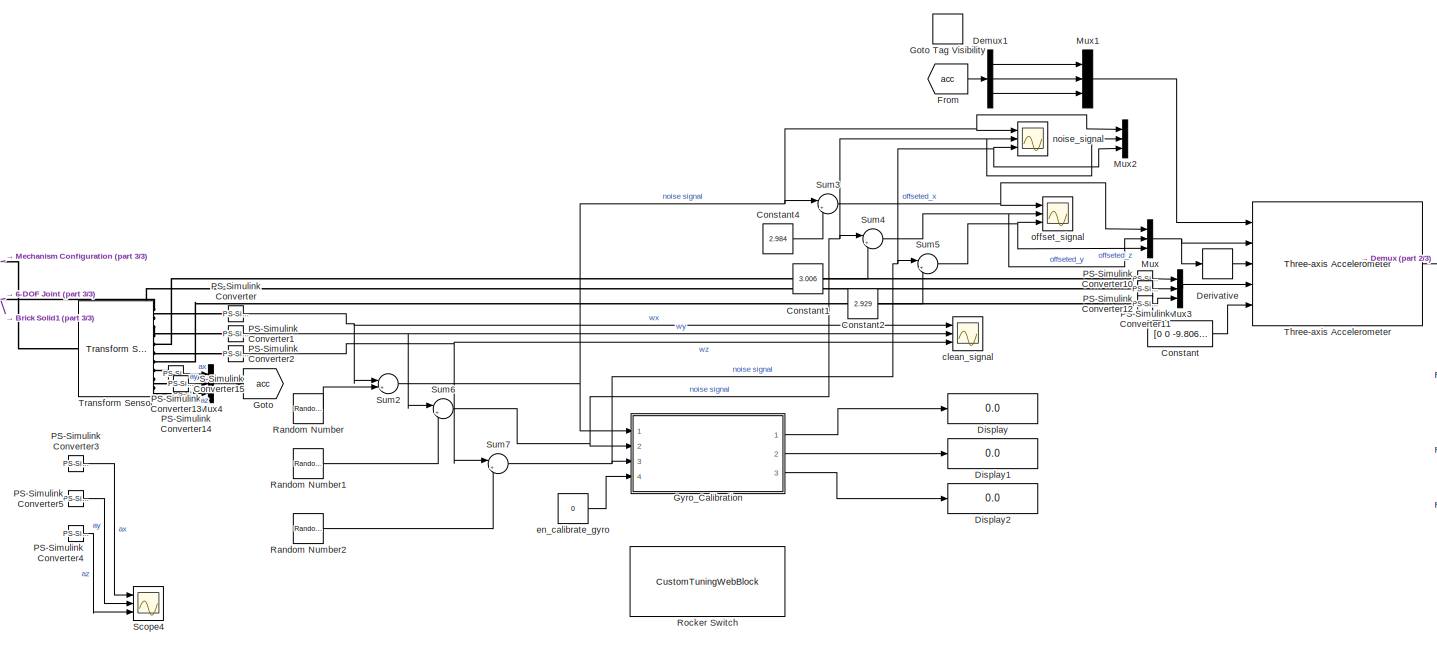
[diagram: root canvas - part 1/3, center side, full height]
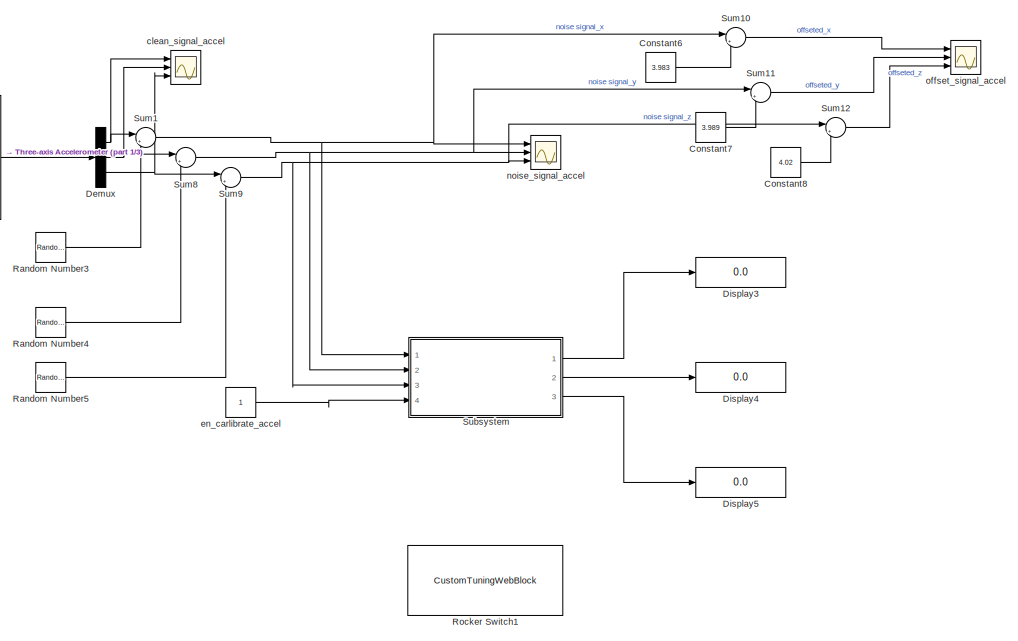
[diagram: root canvas - part 2/3, right side, full height]
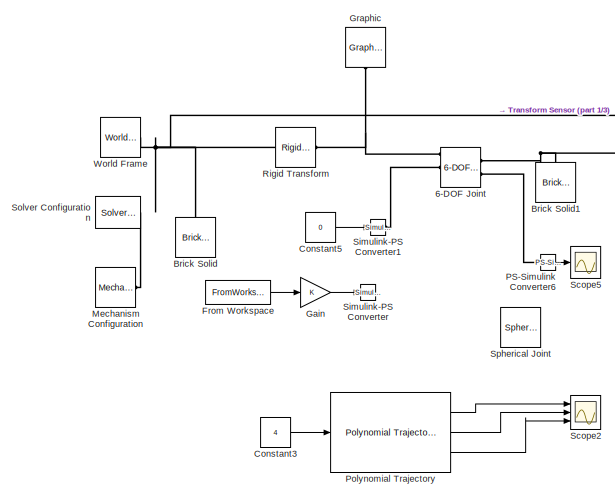
[diagram: root canvas - part 3/3, middle left region]
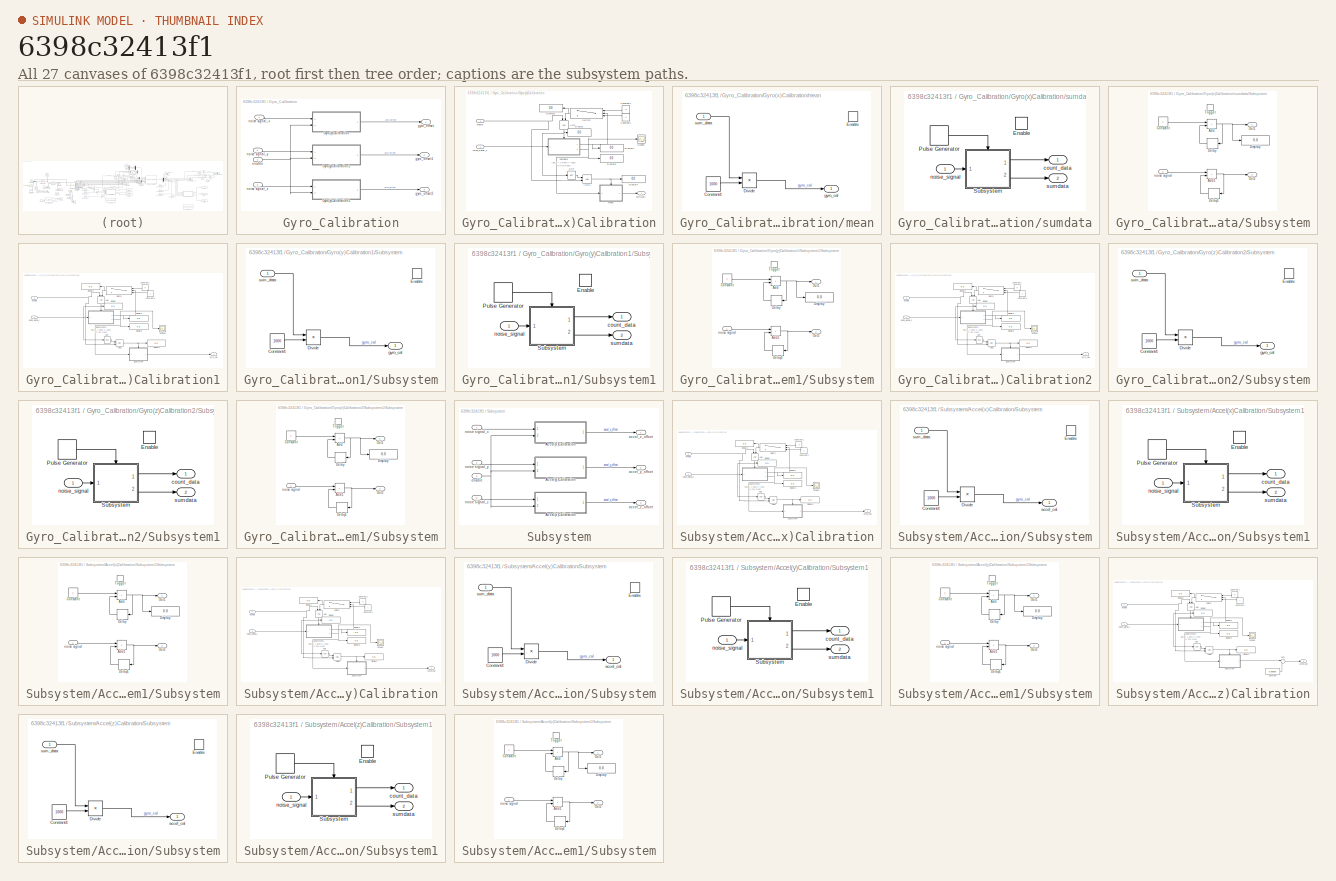
[diagram: thumbnail index - all 27 canvases of the model, root first then tree order]
MODEL slx_6398c32413f1
KIND model
CONFIG AbsTol = auto
CONFIG EnableMultiTasking = off
CONFIG FixedStep = auto
CONFIG MaxStep = auto
CONFIG MinStep = auto
CONFIG RelTol = 1e-3
CONFIG SampleTimeConstraint = Unconstrained
CONFIG SolverName = VariableStepAuto
CONFIG StartTime = 0.0
CONFIG StopTime = 10.0
BLOCK [Reference] 6-DOF Joint  REF=sm_lib/Joints/6-DOF Joint
  Ports = [0, 0, 0, 0, 0, 5, 2]
  SourceBlock = sm_lib/Joints/6-DOF Joint
  SourceProductBaseCode = MS
  SourceType = 6-DOF Joint
BLOCK [Reference] Brick Solid  REF=sm_lib/Body Elements/Brick Solid
  NameLocation = right
  Ports = [0, 0, 0, 0, 0, 0, 1]
  SourceBlock = sm_lib/Body Elements/Brick Solid
  SourceProductBaseCode = MS
  SourceType = Brick Solid
BLOCK [Reference] Brick Solid1  REF=sm_lib/Body Elements/Brick Solid
  NameLocation = right
  Ports = [0, 0, 0, 0, 0, 0, 1]
  SourceBlock = sm_lib/Body Elements/Brick Solid
  SourceProductBaseCode = MS
  SourceType = Brick Solid
BLOCK [Constant] Constant
  Value = [0 0 -9.80665]
BLOCK [Constant] Constant1
  Value = 3.006
BLOCK [Constant] Constant2
  Value = 2.929
BLOCK [Constant] Constant3
  Commented = on
  Value = 4
BLOCK [Constant] Constant4
  Value = 2.984
BLOCK [Constant] Constant5
  Value = 0
BLOCK [Constant] Constant6
  Value = 3.983
BLOCK [Constant] Constant7
  Value = 3.989
BLOCK [Constant] Constant8
  Value = 4.02
BLOCK [Demux] Demux
  Outputs = 3
  Ports = [1, 3]
BLOCK [Demux] Demux1
  Outputs = 3
  Ports = [1, 3]
BLOCK [Derivative] Derivative
BLOCK [Display] Display
  Decimation = 1
  Ports = [1]
BLOCK [Display] Display1
  Decimation = 1
  Ports = [1]
BLOCK [Display] Display2
  Decimation = 1
  Ports = [1]
BLOCK [Display] Display3
  Decimation = 1
  Ports = [1]
BLOCK [Display] Display4
  Decimation = 1
  Ports = [1]
BLOCK [Display] Display5
  Decimation = 1
  Ports = [1]
BLOCK [From] From
  GotoTag = acc
BLOCK [FromWorkspace] From Workspace
  Commented = on
  VariableName = q1sim
BLOCK [Gain] Gain
  Commented = on
BLOCK [Goto] Goto
  GotoTag = acc
BLOCK [GotoTagVisibility] Goto Tag Visibility
  GotoTag = acc
BLOCK [Reference] Graphic  REF=sm_lib/Body Elements/Graphic
  NameLocation = left
  Ports = [0, 0, 0, 0, 0, 0, 1]
  SourceBlock = sm_lib/Body Elements/Graphic
  SourceProductBaseCode = MS
  SourceType = Graphic
BLOCK [SubSystem] Gyro_Calibration
  Ports = [4, 3]
  RequestExecContextInheritance = off
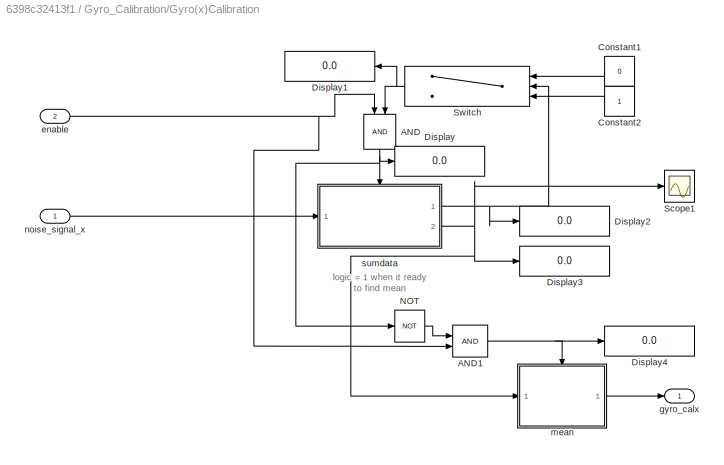
BLOCK [SubSystem] Gyro_Calibration/Gyro(x)Calibration
  Ports = [2, 1]
  RequestExecContextInheritance = off
BLOCK [Logic] Gyro_Calibration/Gyro(x)Calibration/AND
  AllPortsSameDT = off
  IconShape = distinctive
  NameLocation = left
  OutDataTypeStr = boolean
  Ports = [2, 1]
BLOCK [Logic] Gyro_Calibration/Gyro(x)Calibration/AND1
  AllPortsSameDT = off
  IconShape = distinctive
  OutDataTypeStr = boolean
  Ports = [2, 1]
BLOCK [Constant] Gyro_Calibration/Gyro(x)Calibration/Constant1
  NameLocation = top
  Value = 0
BLOCK [Constant] Gyro_Calibration/Gyro(x)Calibration/Constant2
  NameLocation = top
BLOCK [Display] Gyro_Calibration/Gyro(x)Calibration/Display
  Decimation = 1
  Ports = [1]
BLOCK [Display] Gyro_Calibration/Gyro(x)Calibration/Display1
  Decimation = 1
  NameLocation = top
  Ports = [1]
BLOCK [Display] Gyro_Calibration/Gyro(x)Calibration/Display2
  Decimation = 1
  Ports = [1]
BLOCK [Display] Gyro_Calibration/Gyro(x)Calibration/Display3
  Decimation = 1
  Ports = [1]
BLOCK [Display] Gyro_Calibration/Gyro(x)Calibration/Display4
  Decimation = 1
  Ports = [1]
BLOCK [Logic] Gyro_Calibration/Gyro(x)Calibration/NOT
  AllPortsSameDT = off
  IconShape = distinctive
  Operator = NOT
  OutDataTypeStr = boolean
  Ports = [1, 1]
BLOCK [Scope] Gyro_Calibration/Gyro(x)Calibration/Scope1
  Floating = off
  NumInputPorts = 1
  Ports = [1]
  ScopeSpecificationString = Simulink.scopes.TimeScopeBlockCfg('CurrentConfiguration', extmgr.ConfigurationSet(extmgr.Configuration('Core','General UI',true),extmgr.Configuration('Core','Source UI',true),extmgr.Configuration('Sources','WiredSimulink',true,'DataLoggingVariableName','ScopeData1'),extmgr.Configuration('Visuals','Time Domain',true,'SerializedDisplays',{struct('MinYLimReal','-653.32347','MaxYLimReal','5879.9112','...<+1414ch>  <repeated x6 — deduplicated; at blocks: Scope1>
BLOCK [Switch] Gyro_Calibration/Gyro(x)Calibration/Switch
  InputSameDT = off
  NameLocation = top
  SaturateOnIntegerOverflow = off
  Threshold = cal_size
BLOCK [Inport] Gyro_Calibration/Gyro(x)Calibration/enable
  Port = 2
BLOCK [Outport] Gyro_Calibration/Gyro(x)Calibration/gyro_calx
BLOCK [SubSystem] Gyro_Calibration/Gyro(x)Calibration/mean
  Ports = [1, 1, 1]
  RequestExecContextInheritance = off
BLOCK [Constant] Gyro_Calibration/Gyro(x)Calibration/mean/Constant4
  Value = 1000
BLOCK [Product] Gyro_Calibration/Gyro(x)Calibration/mean/Divide
  Inputs = */
  Ports = [2, 1]
BLOCK [EnablePort] Gyro_Calibration/Gyro(x)Calibration/mean/Enable
  Ports = []
BLOCK [Outport] Gyro_Calibration/Gyro(x)Calibration/mean/gyro_cal
BLOCK [Inport] Gyro_Calibration/Gyro(x)Calibration/mean/sum_data
BLOCK [Inport] Gyro_Calibration/Gyro(x)Calibration/noise_signal_x
BLOCK [SubSystem] Gyro_Calibration/Gyro(x)Calibration/sumdata
  Ports = [1, 2, 1]
  RequestExecContextInheritance = off
BLOCK [EnablePort] Gyro_Calibration/Gyro(x)Calibration/sumdata/Enable
  Ports = []
BLOCK [DiscretePulseGenerator] Gyro_Calibration/Gyro(x)Calibration/sumdata/Pulse Generator
  Period = sampleT
  Ports = [0, 1]
  PulseType = Time based
  PulseWidth = 5
BLOCK [SubSystem] Gyro_Calibration/Gyro(x)Calibration/sumdata/Subsystem
  Ports = [1, 2, 0, 1]
  RequestExecContextInheritance = off
BLOCK [Sum] Gyro_Calibration/Gyro(x)Calibration/sumdata/Subsystem/Add
  IconShape = rectangular
  Ports = [2, 1]
BLOCK [Sum] Gyro_Calibration/Gyro(x)Calibration/sumdata/Subsystem/Add1
  IconShape = rectangular
  Ports = [2, 1]
BLOCK [Constant] Gyro_Calibration/Gyro(x)Calibration/sumdata/Subsystem/Constant
BLOCK [Delay] Gyro_Calibration/Gyro(x)Calibration/sumdata/Subsystem/Delay
  DelayLength = 1
  InputPortMap = u0
  NameLocation = top
  Ports = [1, 1]
BLOCK [Delay] Gyro_Calibration/Gyro(x)Calibration/sumdata/Subsystem/Delay1
  DelayLength = 1
  InputPortMap = u0
  NameLocation = top
  Ports = [1, 1]
BLOCK [Display] Gyro_Calibration/Gyro(x)Calibration/sumdata/Subsystem/Display
  Decimation = 1
  Ports = [1]
BLOCK [Outport] Gyro_Calibration/Gyro(x)Calibration/sumdata/Subsystem/Out1
BLOCK [Outport] Gyro_Calibration/Gyro(x)Calibration/sumdata/Subsystem/Out2
  Port = 2
BLOCK [TriggerPort] Gyro_Calibration/Gyro(x)Calibration/sumdata/Subsystem/Trigger
  PortDimensions = 1
  Ports = []
  StatesWhenEnabling = held
  VariantControl = (inherit)
BLOCK [Inport] Gyro_Calibration/Gyro(x)Calibration/sumdata/Subsystem/noise signal
BLOCK [Outport] Gyro_Calibration/Gyro(x)Calibration/sumdata/count_data
BLOCK [Inport] Gyro_Calibration/Gyro(x)Calibration/sumdata/noise_signal
BLOCK [Outport] Gyro_Calibration/Gyro(x)Calibration/sumdata/sumdata
  Port = 2
BLOCK [SubSystem] Gyro_Calibration/Gyro(y)Calibration1
  Ports = [2, 1]
  RequestExecContextInheritance = off
BLOCK [Logic] Gyro_Calibration/Gyro(y)Calibration1/AND
  AllPortsSameDT = off
  IconShape = distinctive
  NameLocation = left
  OutDataTypeStr = boolean
  Ports = [2, 1]
BLOCK [Logic] Gyro_Calibration/Gyro(y)Calibration1/AND1
  AllPortsSameDT = off
  IconShape = distinctive
  OutDataTypeStr = boolean
  Ports = [2, 1]
BLOCK [Constant] Gyro_Calibration/Gyro(y)Calibration1/Constant1
  NameLocation = top
  Value = 0
BLOCK [Constant] Gyro_Calibration/Gyro(y)Calibration1/Constant2
  NameLocation = top
BLOCK [Display] Gyro_Calibration/Gyro(y)Calibration1/Display
  Decimation = 1
  Ports = [1]
BLOCK [Display] Gyro_Calibration/Gyro(y)Calibration1/Display1
  Decimation = 1
  NameLocation = top
  Ports = [1]
BLOCK [Display] Gyro_Calibration/Gyro(y)Calibration1/Display2
  Decimation = 1
  Ports = [1]
BLOCK [Display] Gyro_Calibration/Gyro(y)Calibration1/Display3
  Decimation = 1
  Ports = [1]
BLOCK [Display] Gyro_Calibration/Gyro(y)Calibration1/Display4
  Decimation = 1
  Ports = [1]
BLOCK [Logic] Gyro_Calibration/Gyro(y)Calibration1/NOT
  AllPortsSameDT = off
  IconShape = distinctive
  Operator = NOT
  OutDataTypeStr = boolean
  Ports = [1, 1]
BLOCK [Scope] Gyro_Calibration/Gyro(y)Calibration1/Scope1
  Floating = off
  NumInputPorts = 1
  Ports = [1]
BLOCK [SubSystem] Gyro_Calibration/Gyro(y)Calibration1/Subsystem
  Ports = [1, 1, 1]
  RequestExecContextInheritance = off
BLOCK [Constant] Gyro_Calibration/Gyro(y)Calibration1/Subsystem/Constant4
  Value = 1000
BLOCK [Product] Gyro_Calibration/Gyro(y)Calibration1/Subsystem/Divide
  Inputs = */
  Ports = [2, 1]
BLOCK [EnablePort] Gyro_Calibration/Gyro(y)Calibration1/Subsystem/Enable
  Ports = []
BLOCK [Outport] Gyro_Calibration/Gyro(y)Calibration1/Subsystem/gyro_cal
BLOCK [Inport] Gyro_Calibration/Gyro(y)Calibration1/Subsystem/sum_data
BLOCK [SubSystem] Gyro_Calibration/Gyro(y)Calibration1/Subsystem1
  Ports = [1, 2, 1]
  RequestExecContextInheritance = off
BLOCK [EnablePort] Gyro_Calibration/Gyro(y)Calibration1/Subsystem1/Enable
  Ports = []
BLOCK [DiscretePulseGenerator] Gyro_Calibration/Gyro(y)Calibration1/Subsystem1/Pulse Generator
  Period = sampleT
  Ports = [0, 1]
  PulseType = Time based
  PulseWidth = 5
BLOCK [SubSystem] Gyro_Calibration/Gyro(y)Calibration1/Subsystem1/Subsystem
  Ports = [1, 2, 0, 1]
  RequestExecContextInheritance = off
BLOCK [Sum] Gyro_Calibration/Gyro(y)Calibration1/Subsystem1/Subsystem/Add
  IconShape = rectangular
  Ports = [2, 1]
BLOCK [Sum] Gyro_Calibration/Gyro(y)Calibration1/Subsystem1/Subsystem/Add1
  IconShape = rectangular
  Ports = [2, 1]
BLOCK [Constant] Gyro_Calibration/Gyro(y)Calibration1/Subsystem1/Subsystem/Constant
BLOCK [Delay] Gyro_Calibration/Gyro(y)Calibration1/Subsystem1/Subsystem/Delay
  DelayLength = 1
  InputPortMap = u0
  NameLocation = top
  Ports = [1, 1]
BLOCK [Delay] Gyro_Calibration/Gyro(y)Calibration1/Subsystem1/Subsystem/Delay1
  DelayLength = 1
  InputPortMap = u0
  NameLocation = top
  Ports = [1, 1]
BLOCK [Display] Gyro_Calibration/Gyro(y)Calibration1/Subsystem1/Subsystem/Display
  Decimation = 1
  Ports = [1]
BLOCK [Outport] Gyro_Calibration/Gyro(y)Calibration1/Subsystem1/Subsystem/Out1
BLOCK [Outport] Gyro_Calibration/Gyro(y)Calibration1/Subsystem1/Subsystem/Out2
  Port = 2
BLOCK [TriggerPort] Gyro_Calibration/Gyro(y)Calibration1/Subsystem1/Subsystem/Trigger
  PortDimensions = 1
  Ports = []
  StatesWhenEnabling = held
  VariantControl = (inherit)
BLOCK [Inport] Gyro_Calibration/Gyro(y)Calibration1/Subsystem1/Subsystem/noise signal
BLOCK [Outport] Gyro_Calibration/Gyro(y)Calibration1/Subsystem1/count_data
BLOCK [Inport] Gyro_Calibration/Gyro(y)Calibration1/Subsystem1/noise_signal
BLOCK [Outport] Gyro_Calibration/Gyro(y)Calibration1/Subsystem1/sumdata
  Port = 2
BLOCK [Switch] Gyro_Calibration/Gyro(y)Calibration1/Switch
  InputSameDT = off
  NameLocation = top
  SaturateOnIntegerOverflow = off
  Threshold = cal_size
BLOCK [Inport] Gyro_Calibration/Gyro(y)Calibration1/enable
  Port = 2
BLOCK [Outport] Gyro_Calibration/Gyro(y)Calibration1/gyro_caly
BLOCK [Inport] Gyro_Calibration/Gyro(y)Calibration1/noise_signal_y
BLOCK [SubSystem] Gyro_Calibration/Gyro(z)Calibration2
  Ports = [2, 1]
  RequestExecContextInheritance = off
BLOCK [Logic] Gyro_Calibration/Gyro(z)Calibration2/AND
  AllPortsSameDT = off
  IconShape = distinctive
  NameLocation = left
  OutDataTypeStr = boolean
  Ports = [2, 1]
BLOCK [Logic] Gyro_Calibration/Gyro(z)Calibration2/AND1
  AllPortsSameDT = off
  IconShape = distinctive
  OutDataTypeStr = boolean
  Ports = [2, 1]
BLOCK [Constant] Gyro_Calibration/Gyro(z)Calibration2/Constant1
  NameLocation = top
  Value = 0
BLOCK [Constant] Gyro_Calibration/Gyro(z)Calibration2/Constant2
  NameLocation = top
BLOCK [Display] Gyro_Calibration/Gyro(z)Calibration2/Display
  Decimation = 1
  Ports = [1]
BLOCK [Display] Gyro_Calibration/Gyro(z)Calibration2/Display1
  Decimation = 1
  NameLocation = top
  Ports = [1]
BLOCK [Display] Gyro_Calibration/Gyro(z)Calibration2/Display2
  Decimation = 1
  Ports = [1]
BLOCK [Display] Gyro_Calibration/Gyro(z)Calibration2/Display3
  Decimation = 1
  Ports = [1]
BLOCK [Display] Gyro_Calibration/Gyro(z)Calibration2/Display4
  Decimation = 1
  Ports = [1]
BLOCK [Logic] Gyro_Calibration/Gyro(z)Calibration2/NOT
  AllPortsSameDT = off
  IconShape = distinctive
  Operator = NOT
  OutDataTypeStr = boolean
  Ports = [1, 1]
BLOCK [Scope] Gyro_Calibration/Gyro(z)Calibration2/Scope1
  Floating = off
  NumInputPorts = 1
  Ports = [1]
BLOCK [SubSystem] Gyro_Calibration/Gyro(z)Calibration2/Subsystem
  Ports = [1, 1, 1]
  RequestExecContextInheritance = off
BLOCK [Constant] Gyro_Calibration/Gyro(z)Calibration2/Subsystem/Constant4
  Value = 1000
BLOCK [Product] Gyro_Calibration/Gyro(z)Calibration2/Subsystem/Divide
  Inputs = */
  Ports = [2, 1]
BLOCK [EnablePort] Gyro_Calibration/Gyro(z)Calibration2/Subsystem/Enable
  Ports = []
BLOCK [Outport] Gyro_Calibration/Gyro(z)Calibration2/Subsystem/gyro_cal
BLOCK [Inport] Gyro_Calibration/Gyro(z)Calibration2/Subsystem/sum_data
BLOCK [SubSystem] Gyro_Calibration/Gyro(z)Calibration2/Subsystem1
  Ports = [1, 2, 1]
  RequestExecContextInheritance = off
BLOCK [EnablePort] Gyro_Calibration/Gyro(z)Calibration2/Subsystem1/Enable
  Ports = []
BLOCK [DiscretePulseGenerator] Gyro_Calibration/Gyro(z)Calibration2/Subsystem1/Pulse Generator
  Period = sampleT
  Ports = [0, 1]
  PulseType = Time based
  PulseWidth = 5
BLOCK [SubSystem] Gyro_Calibration/Gyro(z)Calibration2/Subsystem1/Subsystem
  Ports = [1, 2, 0, 1]
  RequestExecContextInheritance = off
BLOCK [Sum] Gyro_Calibration/Gyro(z)Calibration2/Subsystem1/Subsystem/Add
  IconShape = rectangular
  Ports = [2, 1]
BLOCK [Sum] Gyro_Calibration/Gyro(z)Calibration2/Subsystem1/Subsystem/Add1
  IconShape = rectangular
  Ports = [2, 1]
BLOCK [Constant] Gyro_Calibration/Gyro(z)Calibration2/Subsystem1/Subsystem/Constant
BLOCK [Delay] Gyro_Calibration/Gyro(z)Calibration2/Subsystem1/Subsystem/Delay
  DelayLength = 1
  InputPortMap = u0
  NameLocation = top
  Ports = [1, 1]
BLOCK [Delay] Gyro_Calibration/Gyro(z)Calibration2/Subsystem1/Subsystem/Delay1
  DelayLength = 1
  InputPortMap = u0
  NameLocation = top
  Ports = [1, 1]
BLOCK [Display] Gyro_Calibration/Gyro(z)Calibration2/Subsystem1/Subsystem/Display
  Decimation = 1
  Ports = [1]
BLOCK [Outport] Gyro_Calibration/Gyro(z)Calibration2/Subsystem1/Subsystem/Out1
BLOCK [Outport] Gyro_Calibration/Gyro(z)Calibration2/Subsystem1/Subsystem/Out2
  Port = 2
BLOCK [TriggerPort] Gyro_Calibration/Gyro(z)Calibration2/Subsystem1/Subsystem/Trigger
  PortDimensions = 1
  Ports = []
  StatesWhenEnabling = held
  VariantControl = (inherit)
BLOCK [Inport] Gyro_Calibration/Gyro(z)Calibration2/Subsystem1/Subsystem/noise signal
BLOCK [Outport] Gyro_Calibration/Gyro(z)Calibration2/Subsystem1/count_data
BLOCK [Inport] Gyro_Calibration/Gyro(z)Calibration2/Subsystem1/noise_signal
BLOCK [Outport] Gyro_Calibration/Gyro(z)Calibration2/Subsystem1/sumdata
  Port = 2
BLOCK [Switch] Gyro_Calibration/Gyro(z)Calibration2/Switch
  InputSameDT = off
  NameLocation = top
  SaturateOnIntegerOverflow = off
  Threshold = cal_size
BLOCK [Inport] Gyro_Calibration/Gyro(z)Calibration2/enable
  Port = 2
BLOCK [Outport] Gyro_Calibration/Gyro(z)Calibration2/gyro_calz
BLOCK [Inport] Gyro_Calibration/Gyro(z)Calibration2/noise_signal_z
BLOCK [Inport] Gyro_Calibration/enable
  Port = 4
BLOCK [Outport] Gyro_Calibration/gyro_offset
BLOCK [Outport] Gyro_Calibration/gyro_offset1
  Port = 2
BLOCK [Outport] Gyro_Calibration/gyro_offset2
  Port = 3
BLOCK [Inport] Gyro_Calibration/noise signal_x
BLOCK [Inport] Gyro_Calibration/noise signal_y
  Port = 2
BLOCK [Inport] Gyro_Calibration/noise signal_z
  Port = 3
BLOCK [Reference] Mechanism Configuration  REF=sm_lib/Utilities/Mechanism
Configuration
  Ports = [0, 0, 0, 0, 0, 0, 1]
  SourceBlock = sm_lib/Utilities/Mechanism\nConfiguration
  SourceProductBaseCode = MS
  SourceType = Mechanism\nConfiguration
BLOCK [Mux] Mux
  DisplayOption = bar
  Inputs = 3
  Ports = [3, 1]
BLOCK [Mux] Mux1
  DisplayOption = bar
  Inputs = 3
  Ports = [3, 1]
BLOCK [Mux] Mux2
  DisplayOption = bar
  Inputs = 3
  Ports = [3, 1]
BLOCK [Mux] Mux3
  DisplayOption = bar
  Inputs = 3
  Ports = [3, 1]
BLOCK [Mux] Mux4
  DisplayOption = bar
  Inputs = 3
  Ports = [3, 1]
BLOCK [Reference] PS-Simulink Converter  REF=nesl_utility/PS-Simulink
Converter
  Ports = [0, 1, 0, 0, 0, 1]
  SourceBlock = nesl_utility/PS-Simulink\nConverter
  SourceProductBaseCode = PW,SS
  SourceType = PS-Simulink\nConverter
BLOCK [Reference] PS-Simulink Converter1  REF=nesl_utility/PS-Simulink
Converter
  Ports = [0, 1, 0, 0, 0, 1]
  SourceBlock = nesl_utility/PS-Simulink\nConverter
  SourceProductBaseCode = PW,SS
  SourceType = PS-Simulink\nConverter
BLOCK [Reference] PS-Simulink Converter10  REF=nesl_utility/PS-Simulink
Converter
  Ports = [0, 1, 0, 0, 0, 1]
  SourceBlock = nesl_utility/PS-Simulink\nConverter
  SourceProductBaseCode = PW,SS
  SourceType = PS-Simulink\nConverter
BLOCK [Reference] PS-Simulink Converter11  REF=nesl_utility/PS-Simulink
Converter
  Ports = [0, 1, 0, 0, 0, 1]
  SourceBlock = nesl_utility/PS-Simulink\nConverter
  SourceProductBaseCode = PW,SS
  SourceType = PS-Simulink\nConverter
BLOCK [Reference] PS-Simulink Converter12  REF=nesl_utility/PS-Simulink
Converter
  Ports = [0, 1, 0, 0, 0, 1]
  SourceBlock = nesl_utility/PS-Simulink\nConverter
  SourceProductBaseCode = PW,SS
  SourceType = PS-Simulink\nConverter
BLOCK [Reference] PS-Simulink Converter13  REF=nesl_utility/PS-Simulink
Converter
  Ports = [0, 1, 0, 0, 0, 1]
  SourceBlock = nesl_utility/PS-Simulink\nConverter
  SourceProductBaseCode = PW,SS
  SourceType = PS-Simulink\nConverter
BLOCK [Reference] PS-Simulink Converter14  REF=nesl_utility/PS-Simulink
Converter
  Ports = [0, 1, 0, 0, 0, 1]
  SourceBlock = nesl_utility/PS-Simulink\nConverter
  SourceProductBaseCode = PW,SS
  SourceType = PS-Simulink\nConverter
BLOCK [Reference] PS-Simulink Converter15  REF=nesl_utility/PS-Simulink
Converter
  Ports = [0, 1, 0, 0, 0, 1]
  SourceBlock = nesl_utility/PS-Simulink\nConverter
  SourceProductBaseCode = PW,SS
  SourceType = PS-Simulink\nConverter
BLOCK [Reference] PS-Simulink Converter2  REF=nesl_utility/PS-Simulink
Converter
  Ports = [0, 1, 0, 0, 0, 1]
  SourceBlock = nesl_utility/PS-Simulink\nConverter
  SourceProductBaseCode = PW,SS
  SourceType = PS-Simulink\nConverter
BLOCK [Reference] PS-Simulink Converter3  REF=nesl_utility/PS-Simulink
Converter
  Ports = [0, 1, 0, 0, 0, 1]
  SourceBlock = nesl_utility/PS-Simulink\nConverter
  SourceProductBaseCode = PW,SS
  SourceType = PS-Simulink\nConverter
BLOCK [Reference] PS-Simulink Converter4  REF=nesl_utility/PS-Simulink
Converter
  Ports = [0, 1, 0, 0, 0, 1]
  SourceBlock = nesl_utility/PS-Simulink\nConverter
  SourceProductBaseCode = PW,SS
  SourceType = PS-Simulink\nConverter
BLOCK [Reference] PS-Simulink Converter5  REF=nesl_utility/PS-Simulink
Converter
  Ports = [0, 1, 0, 0, 0, 1]
  SourceBlock = nesl_utility/PS-Simulink\nConverter
  SourceProductBaseCode = PW,SS
  SourceType = PS-Simulink\nConverter
BLOCK [Reference] PS-Simulink Converter6  REF=nesl_utility/PS-Simulink
Converter
  Ports = [0, 1, 0, 0, 0, 1]
  SourceBlock = nesl_utility/PS-Simulink\nConverter
  SourceProductBaseCode = PW,SS
  SourceType = PS-Simulink\nConverter
BLOCK [Reference] Polynomial Trajectory  REF=robotcorelib/Polynomial Trajectory
  Commented = on
  Ports = [1, 3]
  SourceBlock = robotcorelib/Polynomial Trajectory
  SourceProductBaseCode = NV,RO,RR,UV
  SourceType = robotics.slcore.internal.block.PolyTrajSys
BLOCK [RandomNumber] Random Number
  Mean = 3
  SampleTime = 0.01
  Variance = 2
BLOCK [RandomNumber] Random Number1
  Mean = 3
  SampleTime = 0.01
  Seed = 1
  Variance = 2
BLOCK [RandomNumber] Random Number2
  Mean = 3
  SampleTime = 0.01
  Seed = 2
  Variance = 2
BLOCK [RandomNumber] Random Number3
  Mean = 4
  SampleTime = 0.01
BLOCK [RandomNumber] Random Number4
  Mean = 4
  SampleTime = 0.01
BLOCK [RandomNumber] Random Number5
  Mean = 4
  SampleTime = 0.01
BLOCK [Reference] Rigid Transform  REF=sm_lib/Frames and
Transforms/Rigid
Transform
  Ports = [0, 0, 0, 0, 0, 1, 1]
  SourceBlock = sm_lib/Frames and\nTransforms/Rigid\nTransform
  SourceProductBaseCode = MS
  SourceType = Rigid\nTransform
BLOCK [CustomTuningWebBlock] Rocker Switch
  Configuration = {"components":[{"name":"CustomSwitchStateComponent","settings":{"position":[0,0,1,1],"states":[{"HitRegion":{"position":[0,0,0.5,1]},"Image":{"position":[0.13,0,1,0.75],"size":[1,0.75],"src":"data:image\/svg+xml;base64,PHN2ZyB4bWxucz0iaHR0cDovL3d3dy53My5vcmcvMjAwMC9zdmciIHhtbG5zOnhsaW5rPSJodHRwOi8vd3d3LnczLm9yZy8xOTk5L3hsaW5rIiB2aWV3Qm94PSIwIDAgNzUgMjQuOCI+PGRlZnM+PHN0eWxlPi5jbHMtMXtmaWxsOnVybCgjc...<+8939ch>
  LabelPosition = Hide
  ShowInitialText = on
BLOCK [CustomTuningWebBlock] Rocker Switch1
  Configuration = {"components":[{"name":"CustomSwitchStateComponent","settings":{"position":[0,0,1,1],"states":[{"HitRegion":{"position":[0,0,0.5,1]},"Image":{"position":[0.13,0,1,0.75],"size":[1,0.75],"src":"data:image\/svg+xml;base64,PHN2ZyB4bWxucz0iaHR0cDovL3d3dy53My5vcmcvMjAwMC9zdmciIHhtbG5zOnhsaW5rPSJodHRwOi8vd3d3LnczLm9yZy8xOTk5L3hsaW5rIiB2aWV3Qm94PSIwIDAgNzUgMjQuOCI+PGRlZnM+PHN0eWxlPi5jbHMtMXtmaWxsOnVybCgjc...<+8939ch>
  LabelPosition = Hide
  ShowInitialText = on
BLOCK [Scope] Scope2
  Commented = on
  Floating = off
  NumInputPorts = 3
  Ports = [3]
  ScopeSpecificationString = Simulink.scopes.TimeScopeBlockCfg('CurrentConfiguration', extmgr.ConfigurationSet(extmgr.Configuration('Core','General UI',true),extmgr.Configuration('Core','Source UI',true),extmgr.Configuration('Sources','WiredSimulink',true,'DataLoggingVariableName','ScopeData2'),extmgr.Configuration('Visuals','Time Domain',true,'SerializedDisplays',{struct('MinYLimReal','-0.625','MaxYLimReal','5.625','YLabelRe...<+1676ch>
BLOCK [Scope] Scope4
  Floating = off
  NumInputPorts = 3
  Ports = [3]
  ScopeSpecificationString = Simulink.scopes.TimeScopeBlockCfg('CurrentConfiguration', extmgr.ConfigurationSet(extmgr.Configuration('Core','General UI',true),extmgr.Configuration('Core','Source UI',true),extmgr.Configuration('Sources','WiredSimulink',true,'DataLoggingVariableName','ScopeData4'),extmgr.Configuration('Visuals','Time Domain',true,'SerializedDisplays',{struct('MinYLimReal','-1.00000','MaxYLimReal','1.00000','YLab...<+1398ch>
BLOCK [Scope] Scope5
  Floating = off
  NumInputPorts = 1
  Ports = [1]
  ScopeSpecificationString = Simulink.scopes.TimeScopeBlockCfg('CurrentConfiguration', extmgr.ConfigurationSet(extmgr.Configuration('Core','General UI',true),extmgr.Configuration('Core','Source UI',true),extmgr.Configuration('Sources','WiredSimulink',true,'DataLoggingVariableName','ScopeData5'),extmgr.Configuration('Visuals','Time Domain',true,'SerializedDisplays',{struct('MinYLimReal','-1.00000','MaxYLimReal','1.00000','YLab...<+1408ch>
BLOCK [Reference] Simulink-PS Converter  REF=nesl_utility/Simulink-PS
Converter
  Commented = on
  Ports = [1, 0, 0, 0, 0, 0, 1]
  SourceBlock = nesl_utility/Simulink-PS\nConverter
  SourceProductBaseCode = PW,SS
  SourceType = Simulink-PS\nConverter
BLOCK [Reference] Simulink-PS Converter1  REF=nesl_utility/Simulink-PS
Converter
  Ports = [1, 0, 0, 0, 0, 0, 1]
  SourceBlock = nesl_utility/Simulink-PS\nConverter
  SourceProductBaseCode = PW,SS
  SourceType = Simulink-PS\nConverter
BLOCK [Reference] Solver Configuration  REF=nesl_utility/Solver
Configuration
  Ports = [0, 0, 0, 0, 0, 0, 1]
  SourceBlock = nesl_utility/Solver\nConfiguration
  SourceProductBaseCode = PW,SS
  SourceType = Solver\nConfiguration
BLOCK [Reference] Spherical Joint  REF=sm_lib/Joints/Spherical
Joint
  Commented = on
  Ports = [0, 0, 0, 0, 0, 4, 2]
  SourceBlock = sm_lib/Joints/Spherical\nJoint
  SourceProductBaseCode = MS
  SourceType = Spherical\nJoint
BLOCK [SubSystem] Subsystem
  Ports = [4, 3]
  RequestExecContextInheritance = off
BLOCK [SubSystem] Subsystem/Accel(x)Calibration
  Ports = [2, 1]
  RequestExecContextInheritance = off
BLOCK [Logic] Subsystem/Accel(x)Calibration/AND
  AllPortsSameDT = off
  IconShape = distinctive
  NameLocation = left
  OutDataTypeStr = boolean
  Ports = [2, 1]
BLOCK [Logic] Subsystem/Accel(x)Calibration/AND1
  AllPortsSameDT = off
  IconShape = distinctive
  OutDataTypeStr = boolean
  Ports = [2, 1]
BLOCK [Constant] Subsystem/Accel(x)Calibration/Constant1
  NameLocation = top
  Value = 0
BLOCK [Constant] Subsystem/Accel(x)Calibration/Constant2
  NameLocation = top
BLOCK [Display] Subsystem/Accel(x)Calibration/Display
  Decimation = 1
  Ports = [1]
BLOCK [Display] Subsystem/Accel(x)Calibration/Display1
  Decimation = 1
  NameLocation = top
  Ports = [1]
BLOCK [Display] Subsystem/Accel(x)Calibration/Display2
  Decimation = 1
  Ports = [1]
BLOCK [Display] Subsystem/Accel(x)Calibration/Display3
  Decimation = 1
  Ports = [1]
BLOCK [Display] Subsystem/Accel(x)Calibration/Display4
  Decimation = 1
  Ports = [1]
BLOCK [Logic] Subsystem/Accel(x)Calibration/NOT
  AllPortsSameDT = off
  IconShape = distinctive
  Operator = NOT
  OutDataTypeStr = boolean
  Ports = [1, 1]
BLOCK [Scope] Subsystem/Accel(x)Calibration/Scope1
  Floating = off
  NumInputPorts = 1
  Ports = [1]
BLOCK [SubSystem] Subsystem/Accel(x)Calibration/Subsystem
  Ports = [1, 1, 1]
  RequestExecContextInheritance = off
BLOCK [Constant] Subsystem/Accel(x)Calibration/Subsystem/Constant4
  Value = 1000
BLOCK [Product] Subsystem/Accel(x)Calibration/Subsystem/Divide
  Inputs = */
  Ports = [2, 1]
BLOCK [EnablePort] Subsystem/Accel(x)Calibration/Subsystem/Enable
  Ports = []
BLOCK [Outport] Subsystem/Accel(x)Calibration/Subsystem/accel_cal
BLOCK [Inport] Subsystem/Accel(x)Calibration/Subsystem/sum_data
BLOCK [SubSystem] Subsystem/Accel(x)Calibration/Subsystem1
  Ports = [1, 2, 1]
  RequestExecContextInheritance = off
BLOCK [EnablePort] Subsystem/Accel(x)Calibration/Subsystem1/Enable
  Ports = []
BLOCK [DiscretePulseGenerator] Subsystem/Accel(x)Calibration/Subsystem1/Pulse Generator
  Period = sampleT
  Ports = [0, 1]
  PulseType = Time based
  PulseWidth = 5
BLOCK [SubSystem] Subsystem/Accel(x)Calibration/Subsystem1/Subsystem
  Ports = [1, 2, 0, 1]
  RequestExecContextInheritance = off
BLOCK [Sum] Subsystem/Accel(x)Calibration/Subsystem1/Subsystem/Add
  IconShape = rectangular
  Ports = [2, 1]
BLOCK [Sum] Subsystem/Accel(x)Calibration/Subsystem1/Subsystem/Add1
  IconShape = rectangular
  Ports = [2, 1]
BLOCK [Constant] Subsystem/Accel(x)Calibration/Subsystem1/Subsystem/Constant
BLOCK [Delay] Subsystem/Accel(x)Calibration/Subsystem1/Subsystem/Delay
  DelayLength = 1
  InputPortMap = u0
  NameLocation = top
  Ports = [1, 1]
BLOCK [Delay] Subsystem/Accel(x)Calibration/Subsystem1/Subsystem/Delay1
  DelayLength = 1
  InputPortMap = u0
  NameLocation = top
  Ports = [1, 1]
BLOCK [Display] Subsystem/Accel(x)Calibration/Subsystem1/Subsystem/Display
  Decimation = 1
  Ports = [1]
BLOCK [Outport] Subsystem/Accel(x)Calibration/Subsystem1/Subsystem/Out1
BLOCK [Outport] Subsystem/Accel(x)Calibration/Subsystem1/Subsystem/Out2
  Port = 2
BLOCK [TriggerPort] Subsystem/Accel(x)Calibration/Subsystem1/Subsystem/Trigger
  PortDimensions = 1
  Ports = []
  StatesWhenEnabling = held
  VariantControl = (inherit)
BLOCK [Inport] Subsystem/Accel(x)Calibration/Subsystem1/Subsystem/noise signal
BLOCK [Outport] Subsystem/Accel(x)Calibration/Subsystem1/count_data
BLOCK [Inport] Subsystem/Accel(x)Calibration/Subsystem1/noise_signal
BLOCK [Outport] Subsystem/Accel(x)Calibration/Subsystem1/sumdata
  Port = 2
BLOCK [Switch] Subsystem/Accel(x)Calibration/Switch
  InputSameDT = off
  NameLocation = top
  SaturateOnIntegerOverflow = off
  Threshold = cal_size
BLOCK [Outport] Subsystem/Accel(x)Calibration/accel_calx
BLOCK [Inport] Subsystem/Accel(x)Calibration/enable
  Port = 2
BLOCK [Inport] Subsystem/Accel(x)Calibration/noise_signal_x
BLOCK [SubSystem] Subsystem/Accel(y)Calibration
  Ports = [2, 1]
  RequestExecContextInheritance = off
BLOCK [Logic] Subsystem/Accel(y)Calibration/AND
  AllPortsSameDT = off
  IconShape = distinctive
  NameLocation = left
  OutDataTypeStr = boolean
  Ports = [2, 1]
BLOCK [Logic] Subsystem/Accel(y)Calibration/AND1
  AllPortsSameDT = off
  IconShape = distinctive
  OutDataTypeStr = boolean
  Ports = [2, 1]
BLOCK [Constant] Subsystem/Accel(y)Calibration/Constant1
  NameLocation = top
  Value = 0
BLOCK [Constant] Subsystem/Accel(y)Calibration/Constant2
  NameLocation = top
BLOCK [Display] Subsystem/Accel(y)Calibration/Display
  Decimation = 1
  Ports = [1]
BLOCK [Display] Subsystem/Accel(y)Calibration/Display1
  Decimation = 1
  NameLocation = top
  Ports = [1]
BLOCK [Display] Subsystem/Accel(y)Calibration/Display2
  Decimation = 1
  Ports = [1]
BLOCK [Display] Subsystem/Accel(y)Calibration/Display3
  Decimation = 1
  Ports = [1]
BLOCK [Display] Subsystem/Accel(y)Calibration/Display4
  Decimation = 1
  Ports = [1]
BLOCK [Logic] Subsystem/Accel(y)Calibration/NOT
  AllPortsSameDT = off
  IconShape = distinctive
  Operator = NOT
  OutDataTypeStr = boolean
  Ports = [1, 1]
BLOCK [Scope] Subsystem/Accel(y)Calibration/Scope1
  Floating = off
  NumInputPorts = 1
  Ports = [1]
BLOCK [SubSystem] Subsystem/Accel(y)Calibration/Subsystem
  Ports = [1, 1, 1]
  RequestExecContextInheritance = off
BLOCK [Constant] Subsystem/Accel(y)Calibration/Subsystem/Constant4
  Value = 1000
BLOCK [Product] Subsystem/Accel(y)Calibration/Subsystem/Divide
  Inputs = */
  Ports = [2, 1]
BLOCK [EnablePort] Subsystem/Accel(y)Calibration/Subsystem/Enable
  Ports = []
BLOCK [Outport] Subsystem/Accel(y)Calibration/Subsystem/accel_cal
BLOCK [Inport] Subsystem/Accel(y)Calibration/Subsystem/sum_data
BLOCK [SubSystem] Subsystem/Accel(y)Calibration/Subsystem1
  Ports = [1, 2, 1]
  RequestExecContextInheritance = off
BLOCK [EnablePort] Subsystem/Accel(y)Calibration/Subsystem1/Enable
  Ports = []
BLOCK [DiscretePulseGenerator] Subsystem/Accel(y)Calibration/Subsystem1/Pulse Generator
  Period = sampleT
  Ports = [0, 1]
  PulseType = Time based
  PulseWidth = 5
BLOCK [SubSystem] Subsystem/Accel(y)Calibration/Subsystem1/Subsystem
  Ports = [1, 2, 0, 1]
  RequestExecContextInheritance = off
BLOCK [Sum] Subsystem/Accel(y)Calibration/Subsystem1/Subsystem/Add
  IconShape = rectangular
  Ports = [2, 1]
BLOCK [Sum] Subsystem/Accel(y)Calibration/Subsystem1/Subsystem/Add1
  IconShape = rectangular
  Ports = [2, 1]
BLOCK [Constant] Subsystem/Accel(y)Calibration/Subsystem1/Subsystem/Constant
BLOCK [Delay] Subsystem/Accel(y)Calibration/Subsystem1/Subsystem/Delay
  DelayLength = 1
  InputPortMap = u0
  NameLocation = top
  Ports = [1, 1]
BLOCK [Delay] Subsystem/Accel(y)Calibration/Subsystem1/Subsystem/Delay1
  DelayLength = 1
  InputPortMap = u0
  NameLocation = top
  Ports = [1, 1]
BLOCK [Display] Subsystem/Accel(y)Calibration/Subsystem1/Subsystem/Display
  Decimation = 1
  Ports = [1]
BLOCK [Outport] Subsystem/Accel(y)Calibration/Subsystem1/Subsystem/Out1
BLOCK [Outport] Subsystem/Accel(y)Calibration/Subsystem1/Subsystem/Out2
  Port = 2
BLOCK [TriggerPort] Subsystem/Accel(y)Calibration/Subsystem1/Subsystem/Trigger
  PortDimensions = 1
  Ports = []
  StatesWhenEnabling = held
  VariantControl = (inherit)
BLOCK [Inport] Subsystem/Accel(y)Calibration/Subsystem1/Subsystem/noise signal
BLOCK [Outport] Subsystem/Accel(y)Calibration/Subsystem1/count_data
BLOCK [Inport] Subsystem/Accel(y)Calibration/Subsystem1/noise_signal
BLOCK [Outport] Subsystem/Accel(y)Calibration/Subsystem1/sumdata
  Port = 2
BLOCK [Switch] Subsystem/Accel(y)Calibration/Switch
  InputSameDT = off
  NameLocation = top
  SaturateOnIntegerOverflow = off
  Threshold = cal_size
BLOCK [Outport] Subsystem/Accel(y)Calibration/accel_caly
BLOCK [Inport] Subsystem/Accel(y)Calibration/enable
  Port = 2
BLOCK [Inport] Subsystem/Accel(y)Calibration/noise_signal_y
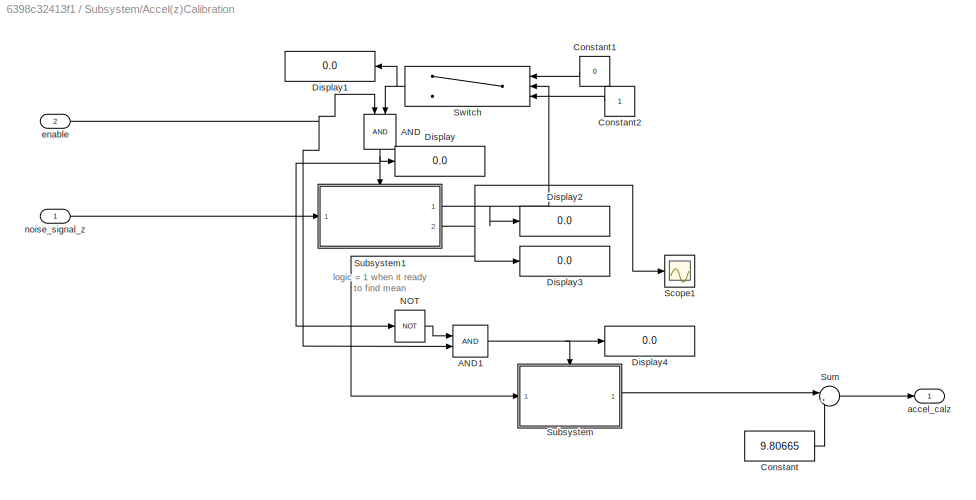
BLOCK [SubSystem] Subsystem/Accel(z)Calibration
  Ports = [2, 1]
  RequestExecContextInheritance = off
BLOCK [Logic] Subsystem/Accel(z)Calibration/AND
  AllPortsSameDT = off
  IconShape = distinctive
  NameLocation = left
  OutDataTypeStr = boolean
  Ports = [2, 1]
BLOCK [Logic] Subsystem/Accel(z)Calibration/AND1
  AllPortsSameDT = off
  IconShape = distinctive
  OutDataTypeStr = boolean
  Ports = [2, 1]
BLOCK [Constant] Subsystem/Accel(z)Calibration/Constant
  Value = 9.80665
BLOCK [Constant] Subsystem/Accel(z)Calibration/Constant1
  NameLocation = top
  Value = 0
BLOCK [Constant] Subsystem/Accel(z)Calibration/Constant2
  NameLocation = top
BLOCK [Display] Subsystem/Accel(z)Calibration/Display
  Decimation = 1
  Ports = [1]
BLOCK [Display] Subsystem/Accel(z)Calibration/Display1
  Decimation = 1
  NameLocation = top
  Ports = [1]
BLOCK [Display] Subsystem/Accel(z)Calibration/Display2
  Decimation = 1
  Ports = [1]
BLOCK [Display] Subsystem/Accel(z)Calibration/Display3
  Decimation = 1
  Ports = [1]
BLOCK [Display] Subsystem/Accel(z)Calibration/Display4
  Decimation = 1
  Ports = [1]
BLOCK [Logic] Subsystem/Accel(z)Calibration/NOT
  AllPortsSameDT = off
  IconShape = distinctive
  Operator = NOT
  OutDataTypeStr = boolean
  Ports = [1, 1]
BLOCK [Scope] Subsystem/Accel(z)Calibration/Scope1
  Floating = off
  NumInputPorts = 1
  Ports = [1]
BLOCK [SubSystem] Subsystem/Accel(z)Calibration/Subsystem
  Ports = [1, 1, 1]
  RequestExecContextInheritance = off
BLOCK [Constant] Subsystem/Accel(z)Calibration/Subsystem/Constant4
  Value = 1000
BLOCK [Product] Subsystem/Accel(z)Calibration/Subsystem/Divide
  Inputs = */
  Ports = [2, 1]
BLOCK [EnablePort] Subsystem/Accel(z)Calibration/Subsystem/Enable
  Ports = []
BLOCK [Outport] Subsystem/Accel(z)Calibration/Subsystem/accel_cal
BLOCK [Inport] Subsystem/Accel(z)Calibration/Subsystem/sum_data
BLOCK [SubSystem] Subsystem/Accel(z)Calibration/Subsystem1
  Ports = [1, 2, 1]
  RequestExecContextInheritance = off
BLOCK [EnablePort] Subsystem/Accel(z)Calibration/Subsystem1/Enable
  Ports = []
BLOCK [DiscretePulseGenerator] Subsystem/Accel(z)Calibration/Subsystem1/Pulse Generator
  Period = sampleT
  Ports = [0, 1]
  PulseType = Time based
  PulseWidth = 5
BLOCK [SubSystem] Subsystem/Accel(z)Calibration/Subsystem1/Subsystem
  Ports = [1, 2, 0, 1]
  RequestExecContextInheritance = off
BLOCK [Sum] Subsystem/Accel(z)Calibration/Subsystem1/Subsystem/Add
  IconShape = rectangular
  Ports = [2, 1]
BLOCK [Sum] Subsystem/Accel(z)Calibration/Subsystem1/Subsystem/Add1
  IconShape = rectangular
  Ports = [2, 1]
BLOCK [Constant] Subsystem/Accel(z)Calibration/Subsystem1/Subsystem/Constant
BLOCK [Delay] Subsystem/Accel(z)Calibration/Subsystem1/Subsystem/Delay
  DelayLength = 1
  InputPortMap = u0
  NameLocation = top
  Ports = [1, 1]
BLOCK [Delay] Subsystem/Accel(z)Calibration/Subsystem1/Subsystem/Delay1
  DelayLength = 1
  InputPortMap = u0
  NameLocation = top
  Ports = [1, 1]
BLOCK [Display] Subsystem/Accel(z)Calibration/Subsystem1/Subsystem/Display
  Decimation = 1
  Ports = [1]
BLOCK [Outport] Subsystem/Accel(z)Calibration/Subsystem1/Subsystem/Out1
BLOCK [Outport] Subsystem/Accel(z)Calibration/Subsystem1/Subsystem/Out2
  Port = 2
BLOCK [TriggerPort] Subsystem/Accel(z)Calibration/Subsystem1/Subsystem/Trigger
  PortDimensions = 1
  Ports = []
  StatesWhenEnabling = held
  VariantControl = (inherit)
BLOCK [Inport] Subsystem/Accel(z)Calibration/Subsystem1/Subsystem/noise signal
BLOCK [Outport] Subsystem/Accel(z)Calibration/Subsystem1/count_data
BLOCK [Inport] Subsystem/Accel(z)Calibration/Subsystem1/noise_signal
BLOCK [Outport] Subsystem/Accel(z)Calibration/Subsystem1/sumdata
  Port = 2
BLOCK [Sum] Subsystem/Accel(z)Calibration/Sum
  Inputs = |+-
  Ports = [2, 1]
BLOCK [Switch] Subsystem/Accel(z)Calibration/Switch
  InputSameDT = off
  NameLocation = top
  SaturateOnIntegerOverflow = off
  Threshold = cal_size
BLOCK [Outport] Subsystem/Accel(z)Calibration/accel_calz
BLOCK [Inport] Subsystem/Accel(z)Calibration/enable
  Port = 2
BLOCK [Inport] Subsystem/Accel(z)Calibration/noise_signal_z
BLOCK [Outport] Subsystem/accel_x_offset
BLOCK [Outport] Subsystem/accel_y_offset
  Port = 2
BLOCK [Outport] Subsystem/accel_z_offset
  Port = 3
BLOCK [Inport] Subsystem/enable
  Port = 4
BLOCK [Inport] Subsystem/noise signal_x
BLOCK [Inport] Subsystem/noise signal_y
  Port = 2
BLOCK [Inport] Subsystem/noise signal_z
  Port = 3
BLOCK [Sum] Sum1
  Inputs = |++
  Ports = [2, 1]
BLOCK [Sum] Sum10
  Inputs = |+-
  Ports = [2, 1]
BLOCK [Sum] Sum11
  Inputs = |+-
  Ports = [2, 1]
BLOCK [Sum] Sum12
  Inputs = |+-
  Ports = [2, 1]
BLOCK [Sum] Sum2
  Inputs = |++
  Ports = [2, 1]
BLOCK [Sum] Sum3
  Inputs = |+-
  Ports = [2, 1]
BLOCK [Sum] Sum4
  Inputs = |+-
  Ports = [2, 1]
BLOCK [Sum] Sum5
  Inputs = |+-
  Ports = [2, 1]
BLOCK [Sum] Sum6
  Inputs = |++
  Ports = [2, 1]
BLOCK [Sum] Sum7
  Inputs = |++
  Ports = [2, 1]
BLOCK [Sum] Sum8
  Inputs = |++
  Ports = [2, 1]
BLOCK [Sum] Sum9
  Inputs = |++
  Ports = [2, 1]
BLOCK [Reference] Three-axis Accelerometer  REF=aerolibnav/Three-axis Accelerometer
  Ports = [5, 1]
  SourceBlock = aerolibnav/Three-axis Accelerometer
  SourceProductBaseCode = AE
  SourceType = Three-axis Accelerometer
BLOCK [Reference] Transform Sensor  REF=sm_lib/Frames and
Transforms/Transform
Sensor
  Ports = [0, 0, 0, 0, 0, 1, 10]
  SourceBlock = sm_lib/Frames and\nTransforms/Transform\nSensor
  SourceProductBaseCode = MS
  SourceType = Transform\nSensor
BLOCK [Reference] World Frame  REF=sm_lib/Frames and
Transforms/World Frame
  Ports = [0, 0, 0, 0, 0, 0, 1]
  SourceBlock = sm_lib/Frames and\nTransforms/World Frame
  SourceProductBaseCode = MS
  SourceType = World Frame
BLOCK [Scope] clean_signal
  Floating = off
  NumInputPorts = 3
  Ports = [3]
  ScopeSpecificationString = Simulink.scopes.TimeScopeBlockCfg('CurrentConfiguration', extmgr.ConfigurationSet(extmgr.Configuration('Core','General UI',true),extmgr.Configuration('Core','Source UI',true),extmgr.Configuration('Sources','WiredSimulink',true),extmgr.Configuration('Visuals','Time Domain',true,'SerializedDisplays',{struct('MinYLimReal','-1.00000','MaxYLimReal','1.00000','YLabelReal','','MinYLimMag','0.00000','MaxY...<+1748ch>
BLOCK [Scope] clean_signal_accel
  Floating = off
  NumInputPorts = 3
  Ports = [3]
  ScopeSpecificationString = Simulink.scopes.TimeScopeBlockCfg('CurrentConfiguration', extmgr.ConfigurationSet(extmgr.Configuration('Core','General UI',true),extmgr.Configuration('Core','Source UI',true),extmgr.Configuration('Sources','WiredSimulink',true,'DataLoggingVariableName','ScopeData7'),extmgr.Configuration('Visuals','Time Domain',true,'SerializedDisplays',{struct('MinYLimReal','-1.56618','MaxYLimReal','11.57703','YLa...<+1390ch>
BLOCK [Constant] en_calibrate_gyro
  Value = 0
BLOCK [Constant] en_carlibrate_accel
BLOCK [Scope] noise_signal
  Floating = off
  NumInputPorts = 3
  Ports = [3]
  ScopeSpecificationString = Simulink.scopes.TimeScopeBlockCfg('CurrentConfiguration', extmgr.ConfigurationSet(extmgr.Configuration('Core','General UI',true),extmgr.Configuration('Core','Source UI',true),extmgr.Configuration('Sources','WiredSimulink',true,'DataLoggingVariableName','ScopeData3'),extmgr.Configuration('Visuals','Time Domain',true,'SerializedDisplays',{struct('MinYLimReal','-3.12715','MaxYLimReal','9.01634','YLab...<+1496ch>
BLOCK [Scope] noise_signal_accel
  Floating = off
  NumInputPorts = 3
  Ports = [3]
  ScopeSpecificationString = Simulink.scopes.TimeScopeBlockCfg('CurrentConfiguration', extmgr.ConfigurationSet(extmgr.Configuration('Core','General UI',true),extmgr.Configuration('Core','Source UI',true),extmgr.Configuration('Sources','WiredSimulink',true,'DataLoggingVariableName','ScopeData6'),extmgr.Configuration('Visuals','Time Domain',true,'SerializedDisplays',{struct('MinYLimReal','-0.93747','MaxYLimReal','18.91175','YLa...<+1440ch>
BLOCK [Scope] offset_signal
  Floating = off
  NumInputPorts = 3
  Ports = [3]
  ScopeSpecificationString = Simulink.scopes.TimeScopeBlockCfg('CurrentConfiguration', extmgr.ConfigurationSet(extmgr.Configuration('Core','General UI',true),extmgr.Configuration('Core','Source UI',true),extmgr.Configuration('Sources','WiredSimulink',true,'DataLoggingVariableName','ScopeData1'),extmgr.Configuration('Visuals','Time Domain',true,'SerializedDisplays',{struct('MinYLimReal','-6.07827','MaxYLimReal','6.0898','YLabe...<+1486ch>
BLOCK [Scope] offset_signal_accel
  Floating = off
  NumInputPorts = 3
  Ports = [3]
  ScopeSpecificationString = Simulink.scopes.TimeScopeBlockCfg('CurrentConfiguration', extmgr.ConfigurationSet(extmgr.Configuration('Core','General UI',true),extmgr.Configuration('Core','Source UI',true),extmgr.Configuration('Sources','WiredSimulink',true,'DataLoggingVariableName','ScopeData1'),extmgr.Configuration('Visuals','Time Domain',true,'SerializedDisplays',{struct('MinYLimReal','-4.91585','MaxYLimReal','14.88713','YLa...<+1428ch>
ANNOTATION Gyro_Calibration/Gyro(x)Calibration: logic = 1 when it ready to find mean
ANNOTATION Gyro_Calibration/Gyro(y)Calibration1: logic = 1 when it ready to find mean
ANNOTATION Gyro_Calibration/Gyro(z)Calibration2: logic = 1 when it ready to find mean
ANNOTATION Subsystem/Accel(x)Calibration: logic = 1 when it ready to find mean
ANNOTATION Subsystem/Accel(y)Calibration: logic = 1 when it ready to find mean
ANNOTATION Subsystem/Accel(z)Calibration: logic = 1 when it ready to find mean
LINE Constant1:1 -> Sum4:2
LINE Constant2:1 -> Sum5:2
LINE Constant3:1 -> Polynomial Trajectory:1
LINE Constant4:1 -> Sum3:2
LINE Constant5:1 -> Simulink-PS Converter1:1
LINE Constant6:1 -> Sum10:2
LINE Constant7:1 -> Sum11:2
LINE Constant8:1 -> Sum12:2
LINE Constant:1 -> Three-axis Accelerometer:5
LINE Demux1:1 -> Mux1:1
LINE Demux1:2 -> Mux1:2
LINE Demux1:3 -> Mux1:3
NET Demux:1 -> Sum1:1, clean_signal_accel:1
NET Demux:2 -> Sum8:1, clean_signal_accel:2
NET Demux:3 -> Sum9:1, clean_signal_accel:3
LINE Derivative:1 -> Three-axis Accelerometer:3
LINE From Workspace:1 -> Gain:1
LINE From:1 -> Demux1:1
LINE Gain:1 -> Simulink-PS Converter:1
NET Gyro_Calibration/Gyro(x)Calibration/AND1:1 -> Gyro_Calibration/Gyro(x)Calibration/Display4:1, Gyro_Calibration/Gyro(x)Calibration/mean:enable
NET Gyro_Calibration/Gyro(x)Calibration/AND:1 -> Gyro_Calibration/Gyro(x)Calibration/Display:1, Gyro_Calibration/Gyro(x)Calibration/NOT:1, Gyro_Calibration/Gyro(x)Calibration/sumdata:enable
LINE Gyro_Calibration/Gyro(x)Calibration/Constant1:1 -> Gyro_Calibration/Gyro(x)Calibration/Switch:1
LINE Gyro_Calibration/Gyro(x)Calibration/Constant2:1 -> Gyro_Calibration/Gyro(x)Calibration/Switch:3
LINE Gyro_Calibration/Gyro(x)Calibration/NOT:1 -> Gyro_Calibration/Gyro(x)Calibration/AND1:1
NET Gyro_Calibration/Gyro(x)Calibration/Switch:1 -> Gyro_Calibration/Gyro(x)Calibration/AND:2, Gyro_Calibration/Gyro(x)Calibration/Display1:1
NET Gyro_Calibration/Gyro(x)Calibration/enable:1 -> Gyro_Calibration/Gyro(x)Calibration/AND1:2, Gyro_Calibration/Gyro(x)Calibration/AND:1
LINE Gyro_Calibration/Gyro(x)Calibration/mean/Constant4:1 -> Gyro_Calibration/Gyro(x)Calibration/mean/Divide:2
LINE Gyro_Calibration/Gyro(x)Calibration/mean/Divide:1 -> Gyro_Calibration/Gyro(x)Calibration/mean/gyro_cal:1
LINE Gyro_Calibration/Gyro(x)Calibration/mean/sum_data:1 -> Gyro_Calibration/Gyro(x)Calibration/mean/Divide:1
LINE Gyro_Calibration/Gyro(x)Calibration/mean:1 -> Gyro_Calibration/Gyro(x)Calibration/gyro_calx:1
LINE Gyro_Calibration/Gyro(x)Calibration/noise_signal_x:1 -> Gyro_Calibration/Gyro(x)Calibration/sumdata:1
LINE Gyro_Calibration/Gyro(x)Calibration/sumdata/Pulse Generator:1 -> Gyro_Calibration/Gyro(x)Calibration/sumdata/Subsystem:trigger
NET Gyro_Calibration/Gyro(x)Calibration/sumdata/Subsystem/Add1:1 -> Gyro_Calibration/Gyro(x)Calibration/sumdata/Subsystem/Delay1:1, Gyro_Calibration/Gyro(x)Calibration/sumdata/Subsystem/Out2:1
NET Gyro_Calibration/Gyro(x)Calibration/sumdata/Subsystem/Add:1 -> Gyro_Calibration/Gyro(x)Calibration/sumdata/Subsystem/Delay:1, Gyro_Calibration/Gyro(x)Calibration/sumdata/Subsystem/Display:1, Gyro_Calibration/Gyro(x)Calibration/sumdata/Subsystem/Out1:1
LINE Gyro_Calibration/Gyro(x)Calibration/sumdata/Subsystem/Constant:1 -> Gyro_Calibration/Gyro(x)Calibration/sumdata/Subsystem/Add:1
LINE Gyro_Calibration/Gyro(x)Calibration/sumdata/Subsystem/Delay1:1 -> Gyro_Calibration/Gyro(x)Calibration/sumdata/Subsystem/Add1:2
LINE Gyro_Calibration/Gyro(x)Calibration/sumdata/Subsystem/Delay:1 -> Gyro_Calibration/Gyro(x)Calibration/sumdata/Subsystem/Add:2
LINE Gyro_Calibration/Gyro(x)Calibration/sumdata/Subsystem/noise signal:1 -> Gyro_Calibration/Gyro(x)Calibration/sumdata/Subsystem/Add1:1
LINE Gyro_Calibration/Gyro(x)Calibration/sumdata/Subsystem:1 -> Gyro_Calibration/Gyro(x)Calibration/sumdata/count_data:1
LINE Gyro_Calibration/Gyro(x)Calibration/sumdata/Subsystem:2 -> Gyro_Calibration/Gyro(x)Calibration/sumdata/sumdata:1
LINE Gyro_Calibration/Gyro(x)Calibration/sumdata/noise_signal:1 -> Gyro_Calibration/Gyro(x)Calibration/sumdata/Subsystem:1
NET Gyro_Calibration/Gyro(x)Calibration/sumdata:1 -> Gyro_Calibration/Gyro(x)Calibration/Display2:1, Gyro_Calibration/Gyro(x)Calibration/Switch:2
NET Gyro_Calibration/Gyro(x)Calibration/sumdata:2 -> Gyro_Calibration/Gyro(x)Calibration/Display3:1, Gyro_Calibration/Gyro(x)Calibration/Scope1:1, Gyro_Calibration/Gyro(x)Calibration/mean:1
LINE Gyro_Calibration/Gyro(x)Calibration:1 -> Gyro_Calibration/gyro_offset:1
NET Gyro_Calibration/Gyro(y)Calibration1/AND1:1 -> Gyro_Calibration/Gyro(y)Calibration1/Display4:1, Gyro_Calibration/Gyro(y)Calibration1/Subsystem:enable
NET Gyro_Calibration/Gyro(y)Calibration1/AND:1 -> Gyro_Calibration/Gyro(y)Calibration1/Display:1, Gyro_Calibration/Gyro(y)Calibration1/NOT:1, Gyro_Calibration/Gyro(y)Calibration1/Subsystem1:enable
LINE Gyro_Calibration/Gyro(y)Calibration1/Constant1:1 -> Gyro_Calibration/Gyro(y)Calibration1/Switch:1
LINE Gyro_Calibration/Gyro(y)Calibration1/Constant2:1 -> Gyro_Calibration/Gyro(y)Calibration1/Switch:3
LINE Gyro_Calibration/Gyro(y)Calibration1/NOT:1 -> Gyro_Calibration/Gyro(y)Calibration1/AND1:1
LINE Gyro_Calibration/Gyro(y)Calibration1/Subsystem/Constant4:1 -> Gyro_Calibration/Gyro(y)Calibration1/Subsystem/Divide:2
LINE Gyro_Calibration/Gyro(y)Calibration1/Subsystem/Divide:1 -> Gyro_Calibration/Gyro(y)Calibration1/Subsystem/gyro_cal:1
LINE Gyro_Calibration/Gyro(y)Calibration1/Subsystem/sum_data:1 -> Gyro_Calibration/Gyro(y)Calibration1/Subsystem/Divide:1
LINE Gyro_Calibration/Gyro(y)Calibration1/Subsystem1/Pulse Generator:1 -> Gyro_Calibration/Gyro(y)Calibration1/Subsystem1/Subsystem:trigger
NET Gyro_Calibration/Gyro(y)Calibration1/Subsystem1/Subsystem/Add1:1 -> Gyro_Calibration/Gyro(y)Calibration1/Subsystem1/Subsystem/Delay1:1, Gyro_Calibration/Gyro(y)Calibration1/Subsystem1/Subsystem/Out2:1
NET Gyro_Calibration/Gyro(y)Calibration1/Subsystem1/Subsystem/Add:1 -> Gyro_Calibration/Gyro(y)Calibration1/Subsystem1/Subsystem/Delay:1, Gyro_Calibration/Gyro(y)Calibration1/Subsystem1/Subsystem/Display:1, Gyro_Calibration/Gyro(y)Calibration1/Subsystem1/Subsystem/Out1:1
LINE Gyro_Calibration/Gyro(y)Calibration1/Subsystem1/Subsystem/Constant:1 -> Gyro_Calibration/Gyro(y)Calibration1/Subsystem1/Subsystem/Add:1
LINE Gyro_Calibration/Gyro(y)Calibration1/Subsystem1/Subsystem/Delay1:1 -> Gyro_Calibration/Gyro(y)Calibration1/Subsystem1/Subsystem/Add1:2
LINE Gyro_Calibration/Gyro(y)Calibration1/Subsystem1/Subsystem/Delay:1 -> Gyro_Calibration/Gyro(y)Calibration1/Subsystem1/Subsystem/Add:2
LINE Gyro_Calibration/Gyro(y)Calibration1/Subsystem1/Subsystem/noise signal:1 -> Gyro_Calibration/Gyro(y)Calibration1/Subsystem1/Subsystem/Add1:1
LINE Gyro_Calibration/Gyro(y)Calibration1/Subsystem1/Subsystem:1 -> Gyro_Calibration/Gyro(y)Calibration1/Subsystem1/count_data:1
LINE Gyro_Calibration/Gyro(y)Calibration1/Subsystem1/Subsystem:2 -> Gyro_Calibration/Gyro(y)Calibration1/Subsystem1/sumdata:1
LINE Gyro_Calibration/Gyro(y)Calibration1/Subsystem1/noise_signal:1 -> Gyro_Calibration/Gyro(y)Calibration1/Subsystem1/Subsystem:1
NET Gyro_Calibration/Gyro(y)Calibration1/Subsystem1:1 -> Gyro_Calibration/Gyro(y)Calibration1/Display2:1, Gyro_Calibration/Gyro(y)Calibration1/Switch:2
NET Gyro_Calibration/Gyro(y)Calibration1/Subsystem1:2 -> Gyro_Calibration/Gyro(y)Calibration1/Display3:1, Gyro_Calibration/Gyro(y)Calibration1/Scope1:1, Gyro_Calibration/Gyro(y)Calibration1/Subsystem:1
LINE Gyro_Calibration/Gyro(y)Calibration1/Subsystem:1 -> Gyro_Calibration/Gyro(y)Calibration1/gyro_caly:1
NET Gyro_Calibration/Gyro(y)Calibration1/Switch:1 -> Gyro_Calibration/Gyro(y)Calibration1/AND:2, Gyro_Calibration/Gyro(y)Calibration1/Display1:1
NET Gyro_Calibration/Gyro(y)Calibration1/enable:1 -> Gyro_Calibration/Gyro(y)Calibration1/AND1:2, Gyro_Calibration/Gyro(y)Calibration1/AND:1
LINE Gyro_Calibration/Gyro(y)Calibration1/noise_signal_y:1 -> Gyro_Calibration/Gyro(y)Calibration1/Subsystem1:1
LINE Gyro_Calibration/Gyro(y)Calibration1:1 -> Gyro_Calibration/gyro_offset1:1
NET Gyro_Calibration/Gyro(z)Calibration2/AND1:1 -> Gyro_Calibration/Gyro(z)Calibration2/Display4:1, Gyro_Calibration/Gyro(z)Calibration2/Subsystem:enable
NET Gyro_Calibration/Gyro(z)Calibration2/AND:1 -> Gyro_Calibration/Gyro(z)Calibration2/Display:1, Gyro_Calibration/Gyro(z)Calibration2/NOT:1, Gyro_Calibration/Gyro(z)Calibration2/Subsystem1:enable
LINE Gyro_Calibration/Gyro(z)Calibration2/Constant1:1 -> Gyro_Calibration/Gyro(z)Calibration2/Switch:1
LINE Gyro_Calibration/Gyro(z)Calibration2/Constant2:1 -> Gyro_Calibration/Gyro(z)Calibration2/Switch:3
LINE Gyro_Calibration/Gyro(z)Calibration2/NOT:1 -> Gyro_Calibration/Gyro(z)Calibration2/AND1:1
LINE Gyro_Calibration/Gyro(z)Calibration2/Subsystem/Constant4:1 -> Gyro_Calibration/Gyro(z)Calibration2/Subsystem/Divide:2
LINE Gyro_Calibration/Gyro(z)Calibration2/Subsystem/Divide:1 -> Gyro_Calibration/Gyro(z)Calibration2/Subsystem/gyro_cal:1
LINE Gyro_Calibration/Gyro(z)Calibration2/Subsystem/sum_data:1 -> Gyro_Calibration/Gyro(z)Calibration2/Subsystem/Divide:1
LINE Gyro_Calibration/Gyro(z)Calibration2/Subsystem1/Pulse Generator:1 -> Gyro_Calibration/Gyro(z)Calibration2/Subsystem1/Subsystem:trigger
NET Gyro_Calibration/Gyro(z)Calibration2/Subsystem1/Subsystem/Add1:1 -> Gyro_Calibration/Gyro(z)Calibration2/Subsystem1/Subsystem/Delay1:1, Gyro_Calibration/Gyro(z)Calibration2/Subsystem1/Subsystem/Out2:1
NET Gyro_Calibration/Gyro(z)Calibration2/Subsystem1/Subsystem/Add:1 -> Gyro_Calibration/Gyro(z)Calibration2/Subsystem1/Subsystem/Delay:1, Gyro_Calibration/Gyro(z)Calibration2/Subsystem1/Subsystem/Display:1, Gyro_Calibration/Gyro(z)Calibration2/Subsystem1/Subsystem/Out1:1
LINE Gyro_Calibration/Gyro(z)Calibration2/Subsystem1/Subsystem/Constant:1 -> Gyro_Calibration/Gyro(z)Calibration2/Subsystem1/Subsystem/Add:1
LINE Gyro_Calibration/Gyro(z)Calibration2/Subsystem1/Subsystem/Delay1:1 -> Gyro_Calibration/Gyro(z)Calibration2/Subsystem1/Subsystem/Add1:2
LINE Gyro_Calibration/Gyro(z)Calibration2/Subsystem1/Subsystem/Delay:1 -> Gyro_Calibration/Gyro(z)Calibration2/Subsystem1/Subsystem/Add:2
LINE Gyro_Calibration/Gyro(z)Calibration2/Subsystem1/Subsystem/noise signal:1 -> Gyro_Calibration/Gyro(z)Calibration2/Subsystem1/Subsystem/Add1:1
LINE Gyro_Calibration/Gyro(z)Calibration2/Subsystem1/Subsystem:1 -> Gyro_Calibration/Gyro(z)Calibration2/Subsystem1/count_data:1
LINE Gyro_Calibration/Gyro(z)Calibration2/Subsystem1/Subsystem:2 -> Gyro_Calibration/Gyro(z)Calibration2/Subsystem1/sumdata:1
LINE Gyro_Calibration/Gyro(z)Calibration2/Subsystem1/noise_signal:1 -> Gyro_Calibration/Gyro(z)Calibration2/Subsystem1/Subsystem:1
NET Gyro_Calibration/Gyro(z)Calibration2/Subsystem1:1 -> Gyro_Calibration/Gyro(z)Calibration2/Display2:1, Gyro_Calibration/Gyro(z)Calibration2/Switch:2
NET Gyro_Calibration/Gyro(z)Calibration2/Subsystem1:2 -> Gyro_Calibration/Gyro(z)Calibration2/Display3:1, Gyro_Calibration/Gyro(z)Calibration2/Scope1:1, Gyro_Calibration/Gyro(z)Calibration2/Subsystem:1
LINE Gyro_Calibration/Gyro(z)Calibration2/Subsystem:1 -> Gyro_Calibration/Gyro(z)Calibration2/gyro_calz:1
NET Gyro_Calibration/Gyro(z)Calibration2/Switch:1 -> Gyro_Calibration/Gyro(z)Calibration2/AND:2, Gyro_Calibration/Gyro(z)Calibration2/Display1:1
NET Gyro_Calibration/Gyro(z)Calibration2/enable:1 -> Gyro_Calibration/Gyro(z)Calibration2/AND1:2, Gyro_Calibration/Gyro(z)Calibration2/AND:1
LINE Gyro_Calibration/Gyro(z)Calibration2/noise_signal_z:1 -> Gyro_Calibration/Gyro(z)Calibration2/Subsystem1:1
LINE Gyro_Calibration/Gyro(z)Calibration2:1 -> Gyro_Calibration/gyro_offset2:1
NET Gyro_Calibration/enable:1 -> Gyro_Calibration/Gyro(x)Calibration:2, Gyro_Calibration/Gyro(y)Calibration1:2, Gyro_Calibration/Gyro(z)Calibration2:2
LINE Gyro_Calibration/noise signal_x:1 -> Gyro_Calibration/Gyro(x)Calibration:1
LINE Gyro_Calibration/noise signal_y:1 -> Gyro_Calibration/Gyro(y)Calibration1:1
LINE Gyro_Calibration/noise signal_z:1 -> Gyro_Calibration/Gyro(z)Calibration2:1
LINE Gyro_Calibration:1 -> Display:1
LINE Gyro_Calibration:2 -> Display1:1
LINE Gyro_Calibration:3 -> Display2:1
LINE Mux1:1 -> Three-axis Accelerometer:1
LINE Mux3:1 -> Three-axis Accelerometer:4
LINE Mux4:1 -> Goto:1
NET Mux:1 -> Derivative:1, Three-axis Accelerometer:2
LINE PS-Simulink Converter10:1 -> Mux3:1
LINE PS-Simulink Converter11:1 -> Mux3:2
LINE PS-Simulink Converter12:1 -> Mux3:3
LINE PS-Simulink Converter13:1 -> Mux4:1
LINE PS-Simulink Converter14:1 -> Mux4:3
LINE PS-Simulink Converter15:1 -> Mux4:2
NET PS-Simulink Converter1:1 -> Sum6:1, clean_signal:2
NET PS-Simulink Converter2:1 -> Sum7:1, clean_signal:3
LINE PS-Simulink Converter3:1 -> Scope4:1
LINE PS-Simulink Converter4:1 -> Scope4:3
LINE PS-Simulink Converter5:1 -> Scope4:2
LINE PS-Simulink Converter6:1 -> Scope5:1
NET PS-Simulink Converter:1 -> Sum2:1, clean_signal:1
LINE Polynomial Trajectory:1 -> Scope2:1
LINE Polynomial Trajectory:2 -> Scope2:2
LINE Polynomial Trajectory:3 -> Scope2:3
LINE Random Number1:1 -> Sum6:2
LINE Random Number2:1 -> Sum7:2
LINE Random Number3:1 -> Sum1:2
LINE Random Number4:1 -> Sum8:2
LINE Random Number5:1 -> Sum9:2
LINE Random Number:1 -> Sum2:2
NET Subsystem/Accel(x)Calibration/AND1:1 -> Subsystem/Accel(x)Calibration/Display4:1, Subsystem/Accel(x)Calibration/Subsystem:enable
NET Subsystem/Accel(x)Calibration/AND:1 -> Subsystem/Accel(x)Calibration/Display:1, Subsystem/Accel(x)Calibration/NOT:1, Subsystem/Accel(x)Calibration/Subsystem1:enable
LINE Subsystem/Accel(x)Calibration/Constant1:1 -> Subsystem/Accel(x)Calibration/Switch:1
LINE Subsystem/Accel(x)Calibration/Constant2:1 -> Subsystem/Accel(x)Calibration/Switch:3
LINE Subsystem/Accel(x)Calibration/NOT:1 -> Subsystem/Accel(x)Calibration/AND1:1
LINE Subsystem/Accel(x)Calibration/Subsystem/Constant4:1 -> Subsystem/Accel(x)Calibration/Subsystem/Divide:2
LINE Subsystem/Accel(x)Calibration/Subsystem/Divide:1 -> Subsystem/Accel(x)Calibration/Subsystem/accel_cal:1
LINE Subsystem/Accel(x)Calibration/Subsystem/sum_data:1 -> Subsystem/Accel(x)Calibration/Subsystem/Divide:1
LINE Subsystem/Accel(x)Calibration/Subsystem1/Pulse Generator:1 -> Subsystem/Accel(x)Calibration/Subsystem1/Subsystem:trigger
NET Subsystem/Accel(x)Calibration/Subsystem1/Subsystem/Add1:1 -> Subsystem/Accel(x)Calibration/Subsystem1/Subsystem/Delay1:1, Subsystem/Accel(x)Calibration/Subsystem1/Subsystem/Out2:1
NET Subsystem/Accel(x)Calibration/Subsystem1/Subsystem/Add:1 -> Subsystem/Accel(x)Calibration/Subsystem1/Subsystem/Delay:1, Subsystem/Accel(x)Calibration/Subsystem1/Subsystem/Display:1, Subsystem/Accel(x)Calibration/Subsystem1/Subsystem/Out1:1
LINE Subsystem/Accel(x)Calibration/Subsystem1/Subsystem/Constant:1 -> Subsystem/Accel(x)Calibration/Subsystem1/Subsystem/Add:1
LINE Subsystem/Accel(x)Calibration/Subsystem1/Subsystem/Delay1:1 -> Subsystem/Accel(x)Calibration/Subsystem1/Subsystem/Add1:2
LINE Subsystem/Accel(x)Calibration/Subsystem1/Subsystem/Delay:1 -> Subsystem/Accel(x)Calibration/Subsystem1/Subsystem/Add:2
LINE Subsystem/Accel(x)Calibration/Subsystem1/Subsystem/noise signal:1 -> Subsystem/Accel(x)Calibration/Subsystem1/Subsystem/Add1:1
LINE Subsystem/Accel(x)Calibration/Subsystem1/Subsystem:1 -> Subsystem/Accel(x)Calibration/Subsystem1/count_data:1
LINE Subsystem/Accel(x)Calibration/Subsystem1/Subsystem:2 -> Subsystem/Accel(x)Calibration/Subsystem1/sumdata:1
LINE Subsystem/Accel(x)Calibration/Subsystem1/noise_signal:1 -> Subsystem/Accel(x)Calibration/Subsystem1/Subsystem:1
NET Subsystem/Accel(x)Calibration/Subsystem1:1 -> Subsystem/Accel(x)Calibration/Display2:1, Subsystem/Accel(x)Calibration/Switch:2
NET Subsystem/Accel(x)Calibration/Subsystem1:2 -> Subsystem/Accel(x)Calibration/Display3:1, Subsystem/Accel(x)Calibration/Scope1:1, Subsystem/Accel(x)Calibration/Subsystem:1
LINE Subsystem/Accel(x)Calibration/Subsystem:1 -> Subsystem/Accel(x)Calibration/accel_calx:1
NET Subsystem/Accel(x)Calibration/Switch:1 -> Subsystem/Accel(x)Calibration/AND:2, Subsystem/Accel(x)Calibration/Display1:1
NET Subsystem/Accel(x)Calibration/enable:1 -> Subsystem/Accel(x)Calibration/AND1:2, Subsystem/Accel(x)Calibration/AND:1
LINE Subsystem/Accel(x)Calibration/noise_signal_x:1 -> Subsystem/Accel(x)Calibration/Subsystem1:1
LINE Subsystem/Accel(x)Calibration:1 -> Subsystem/accel_x_offset:1
NET Subsystem/Accel(y)Calibration/AND1:1 -> Subsystem/Accel(y)Calibration/Display4:1, Subsystem/Accel(y)Calibration/Subsystem:enable
NET Subsystem/Accel(y)Calibration/AND:1 -> Subsystem/Accel(y)Calibration/Display:1, Subsystem/Accel(y)Calibration/NOT:1, Subsystem/Accel(y)Calibration/Subsystem1:enable
LINE Subsystem/Accel(y)Calibration/Constant1:1 -> Subsystem/Accel(y)Calibration/Switch:1
LINE Subsystem/Accel(y)Calibration/Constant2:1 -> Subsystem/Accel(y)Calibration/Switch:3
LINE Subsystem/Accel(y)Calibration/NOT:1 -> Subsystem/Accel(y)Calibration/AND1:1
LINE Subsystem/Accel(y)Calibration/Subsystem/Constant4:1 -> Subsystem/Accel(y)Calibration/Subsystem/Divide:2
LINE Subsystem/Accel(y)Calibration/Subsystem/Divide:1 -> Subsystem/Accel(y)Calibration/Subsystem/accel_cal:1
LINE Subsystem/Accel(y)Calibration/Subsystem/sum_data:1 -> Subsystem/Accel(y)Calibration/Subsystem/Divide:1
LINE Subsystem/Accel(y)Calibration/Subsystem1/Pulse Generator:1 -> Subsystem/Accel(y)Calibration/Subsystem1/Subsystem:trigger
NET Subsystem/Accel(y)Calibration/Subsystem1/Subsystem/Add1:1 -> Subsystem/Accel(y)Calibration/Subsystem1/Subsystem/Delay1:1, Subsystem/Accel(y)Calibration/Subsystem1/Subsystem/Out2:1
NET Subsystem/Accel(y)Calibration/Subsystem1/Subsystem/Add:1 -> Subsystem/Accel(y)Calibration/Subsystem1/Subsystem/Delay:1, Subsystem/Accel(y)Calibration/Subsystem1/Subsystem/Display:1, Subsystem/Accel(y)Calibration/Subsystem1/Subsystem/Out1:1
LINE Subsystem/Accel(y)Calibration/Subsystem1/Subsystem/Constant:1 -> Subsystem/Accel(y)Calibration/Subsystem1/Subsystem/Add:1
LINE Subsystem/Accel(y)Calibration/Subsystem1/Subsystem/Delay1:1 -> Subsystem/Accel(y)Calibration/Subsystem1/Subsystem/Add1:2
LINE Subsystem/Accel(y)Calibration/Subsystem1/Subsystem/Delay:1 -> Subsystem/Accel(y)Calibration/Subsystem1/Subsystem/Add:2
LINE Subsystem/Accel(y)Calibration/Subsystem1/Subsystem/noise signal:1 -> Subsystem/Accel(y)Calibration/Subsystem1/Subsystem/Add1:1
LINE Subsystem/Accel(y)Calibration/Subsystem1/Subsystem:1 -> Subsystem/Accel(y)Calibration/Subsystem1/count_data:1
LINE Subsystem/Accel(y)Calibration/Subsystem1/Subsystem:2 -> Subsystem/Accel(y)Calibration/Subsystem1/sumdata:1
LINE Subsystem/Accel(y)Calibration/Subsystem1/noise_signal:1 -> Subsystem/Accel(y)Calibration/Subsystem1/Subsystem:1
NET Subsystem/Accel(y)Calibration/Subsystem1:1 -> Subsystem/Accel(y)Calibration/Display2:1, Subsystem/Accel(y)Calibration/Switch:2
NET Subsystem/Accel(y)Calibration/Subsystem1:2 -> Subsystem/Accel(y)Calibration/Display3:1, Subsystem/Accel(y)Calibration/Scope1:1, Subsystem/Accel(y)Calibration/Subsystem:1
LINE Subsystem/Accel(y)Calibration/Subsystem:1 -> Subsystem/Accel(y)Calibration/accel_caly:1
NET Subsystem/Accel(y)Calibration/Switch:1 -> Subsystem/Accel(y)Calibration/AND:2, Subsystem/Accel(y)Calibration/Display1:1
NET Subsystem/Accel(y)Calibration/enable:1 -> Subsystem/Accel(y)Calibration/AND1:2, Subsystem/Accel(y)Calibration/AND:1
LINE Subsystem/Accel(y)Calibration/noise_signal_y:1 -> Subsystem/Accel(y)Calibration/Subsystem1:1
LINE Subsystem/Accel(y)Calibration:1 -> Subsystem/accel_y_offset:1
NET Subsystem/Accel(z)Calibration/AND1:1 -> Subsystem/Accel(z)Calibration/Display4:1, Subsystem/Accel(z)Calibration/Subsystem:enable
NET Subsystem/Accel(z)Calibration/AND:1 -> Subsystem/Accel(z)Calibration/Display:1, Subsystem/Accel(z)Calibration/NOT:1, Subsystem/Accel(z)Calibration/Subsystem1:enable
LINE Subsystem/Accel(z)Calibration/Constant1:1 -> Subsystem/Accel(z)Calibration/Switch:1
LINE Subsystem/Accel(z)Calibration/Constant2:1 -> Subsystem/Accel(z)Calibration/Switch:3
LINE Subsystem/Accel(z)Calibration/Constant:1 -> Subsystem/Accel(z)Calibration/Sum:2
LINE Subsystem/Accel(z)Calibration/NOT:1 -> Subsystem/Accel(z)Calibration/AND1:1
LINE Subsystem/Accel(z)Calibration/Subsystem/Constant4:1 -> Subsystem/Accel(z)Calibration/Subsystem/Divide:2
LINE Subsystem/Accel(z)Calibration/Subsystem/Divide:1 -> Subsystem/Accel(z)Calibration/Subsystem/accel_cal:1
LINE Subsystem/Accel(z)Calibration/Subsystem/sum_data:1 -> Subsystem/Accel(z)Calibration/Subsystem/Divide:1
LINE Subsystem/Accel(z)Calibration/Subsystem1/Pulse Generator:1 -> Subsystem/Accel(z)Calibration/Subsystem1/Subsystem:trigger
NET Subsystem/Accel(z)Calibration/Subsystem1/Subsystem/Add1:1 -> Subsystem/Accel(z)Calibration/Subsystem1/Subsystem/Delay1:1, Subsystem/Accel(z)Calibration/Subsystem1/Subsystem/Out2:1
NET Subsystem/Accel(z)Calibration/Subsystem1/Subsystem/Add:1 -> Subsystem/Accel(z)Calibration/Subsystem1/Subsystem/Delay:1, Subsystem/Accel(z)Calibration/Subsystem1/Subsystem/Display:1, Subsystem/Accel(z)Calibration/Subsystem1/Subsystem/Out1:1
LINE Subsystem/Accel(z)Calibration/Subsystem1/Subsystem/Constant:1 -> Subsystem/Accel(z)Calibration/Subsystem1/Subsystem/Add:1
LINE Subsystem/Accel(z)Calibration/Subsystem1/Subsystem/Delay1:1 -> Subsystem/Accel(z)Calibration/Subsystem1/Subsystem/Add1:2
LINE Subsystem/Accel(z)Calibration/Subsystem1/Subsystem/Delay:1 -> Subsystem/Accel(z)Calibration/Subsystem1/Subsystem/Add:2
LINE Subsystem/Accel(z)Calibration/Subsystem1/Subsystem/noise signal:1 -> Subsystem/Accel(z)Calibration/Subsystem1/Subsystem/Add1:1
LINE Subsystem/Accel(z)Calibration/Subsystem1/Subsystem:1 -> Subsystem/Accel(z)Calibration/Subsystem1/count_data:1
LINE Subsystem/Accel(z)Calibration/Subsystem1/Subsystem:2 -> Subsystem/Accel(z)Calibration/Subsystem1/sumdata:1
LINE Subsystem/Accel(z)Calibration/Subsystem1/noise_signal:1 -> Subsystem/Accel(z)Calibration/Subsystem1/Subsystem:1
NET Subsystem/Accel(z)Calibration/Subsystem1:1 -> Subsystem/Accel(z)Calibration/Display2:1, Subsystem/Accel(z)Calibration/Switch:2
NET Subsystem/Accel(z)Calibration/Subsystem1:2 -> Subsystem/Accel(z)Calibration/Display3:1, Subsystem/Accel(z)Calibration/Scope1:1, Subsystem/Accel(z)Calibration/Subsystem:1
LINE Subsystem/Accel(z)Calibration/Subsystem:1 -> Subsystem/Accel(z)Calibration/Sum:1
LINE Subsystem/Accel(z)Calibration/Sum:1 -> Subsystem/Accel(z)Calibration/accel_calz:1
NET Subsystem/Accel(z)Calibration/Switch:1 -> Subsystem/Accel(z)Calibration/AND:2, Subsystem/Accel(z)Calibration/Display1:1
NET Subsystem/Accel(z)Calibration/enable:1 -> Subsystem/Accel(z)Calibration/AND1:2, Subsystem/Accel(z)Calibration/AND:1
LINE Subsystem/Accel(z)Calibration/noise_signal_z:1 -> Subsystem/Accel(z)Calibration/Subsystem1:1
LINE Subsystem/Accel(z)Calibration:1 -> Subsystem/accel_z_offset:1
NET Subsystem/enable:1 -> Subsystem/Accel(x)Calibration:2, Subsystem/Accel(y)Calibration:2, Subsystem/Accel(z)Calibration:2
LINE Subsystem/noise signal_x:1 -> Subsystem/Accel(x)Calibration:1
LINE Subsystem/noise signal_y:1 -> Subsystem/Accel(y)Calibration:1
LINE Subsystem/noise signal_z:1 -> Subsystem/Accel(z)Calibration:1
LINE Subsystem:1 -> Display3:1
LINE Subsystem:2 -> Display4:1
LINE Subsystem:3 -> Display5:1
LINE Sum10:1 -> offset_signal_accel:1
LINE Sum11:1 -> offset_signal_accel:2
LINE Sum12:1 -> offset_signal_accel:3
NET Sum1:1 -> Subsystem:1, Sum10:1, noise_signal_accel:1
NET Sum2:1 -> Gyro_Calibration:1, Mux2:1, Sum3:1, noise_signal:1
NET Sum3:1 -> Mux:1, offset_signal:1
NET Sum4:1 -> Mux:2, offset_signal:2
NET Sum5:1 -> Mux:3, offset_signal:3
NET Sum6:1 -> Gyro_Calibration:2, Mux2:2, Sum4:1, noise_signal:2
NET Sum7:1 -> Gyro_Calibration:3, Mux2:3, Sum5:1, noise_signal:3
NET Sum8:1 -> Subsystem:2, Sum11:1, noise_signal_accel:2
NET Sum9:1 -> Subsystem:3, Sum12:1, noise_signal_accel:3
LINE Three-axis Accelerometer:1 -> Demux:1
LINE en_calibrate_gyro:1 -> Gyro_Calibration:4
LINE en_carlibrate_accel:1 -> Subsystem:4
PNET net1: 6-DOF Joint:LConn1 -- Graphic:RConn1 -- Rigid Transform:RConn1
PLINE 6-DOF Joint:LConn3 -- Simulink-PS Converter1:RConn1
PNET net2: 6-DOF Joint:RConn1 -- Brick Solid1:RConn1 -- Transform Sensor:RConn1
PLINE 6-DOF Joint:RConn2 -- PS-Simulink Converter6:LConn1
PNET net3: Brick Solid:RConn1 -- Mechanism Configuration:RConn1 -- Rigid Transform:LConn1 -- Solver Configuration:RConn1 -- Transform Sensor:LConn1 -- World Frame:RConn1
PLINE PS-Simulink Converter10:LConn1 -- Transform Sensor:RConn5
PLINE PS-Simulink Converter11:LConn1 -- Transform Sensor:RConn6
PLINE PS-Simulink Converter12:LConn1 -- Transform Sensor:RConn7
PLINE PS-Simulink Converter13:LConn1 -- Transform Sensor:RConn8
PLINE PS-Simulink Converter14:LConn1 -- Transform Sensor:RConn10
PLINE PS-Simulink Converter15:LConn1 -- Transform Sensor:RConn9
PLINE PS-Simulink Converter1:LConn1 -- Transform Sensor:RConn3
PLINE PS-Simulink Converter2:LConn1 -- Transform Sensor:RConn4
PLINE PS-Simulink Converter:LConn1 -- Transform Sensor:RConn2
note: NET lines group one-source signal fan-out (src -> all destinations, sorted); 1:1 wires keep LINE; PNET lines group multi-terminal physical nets as a canonical sorted terminal list (undirected conserving connections); 2-terminal nets keep the pairwise PLINE form
